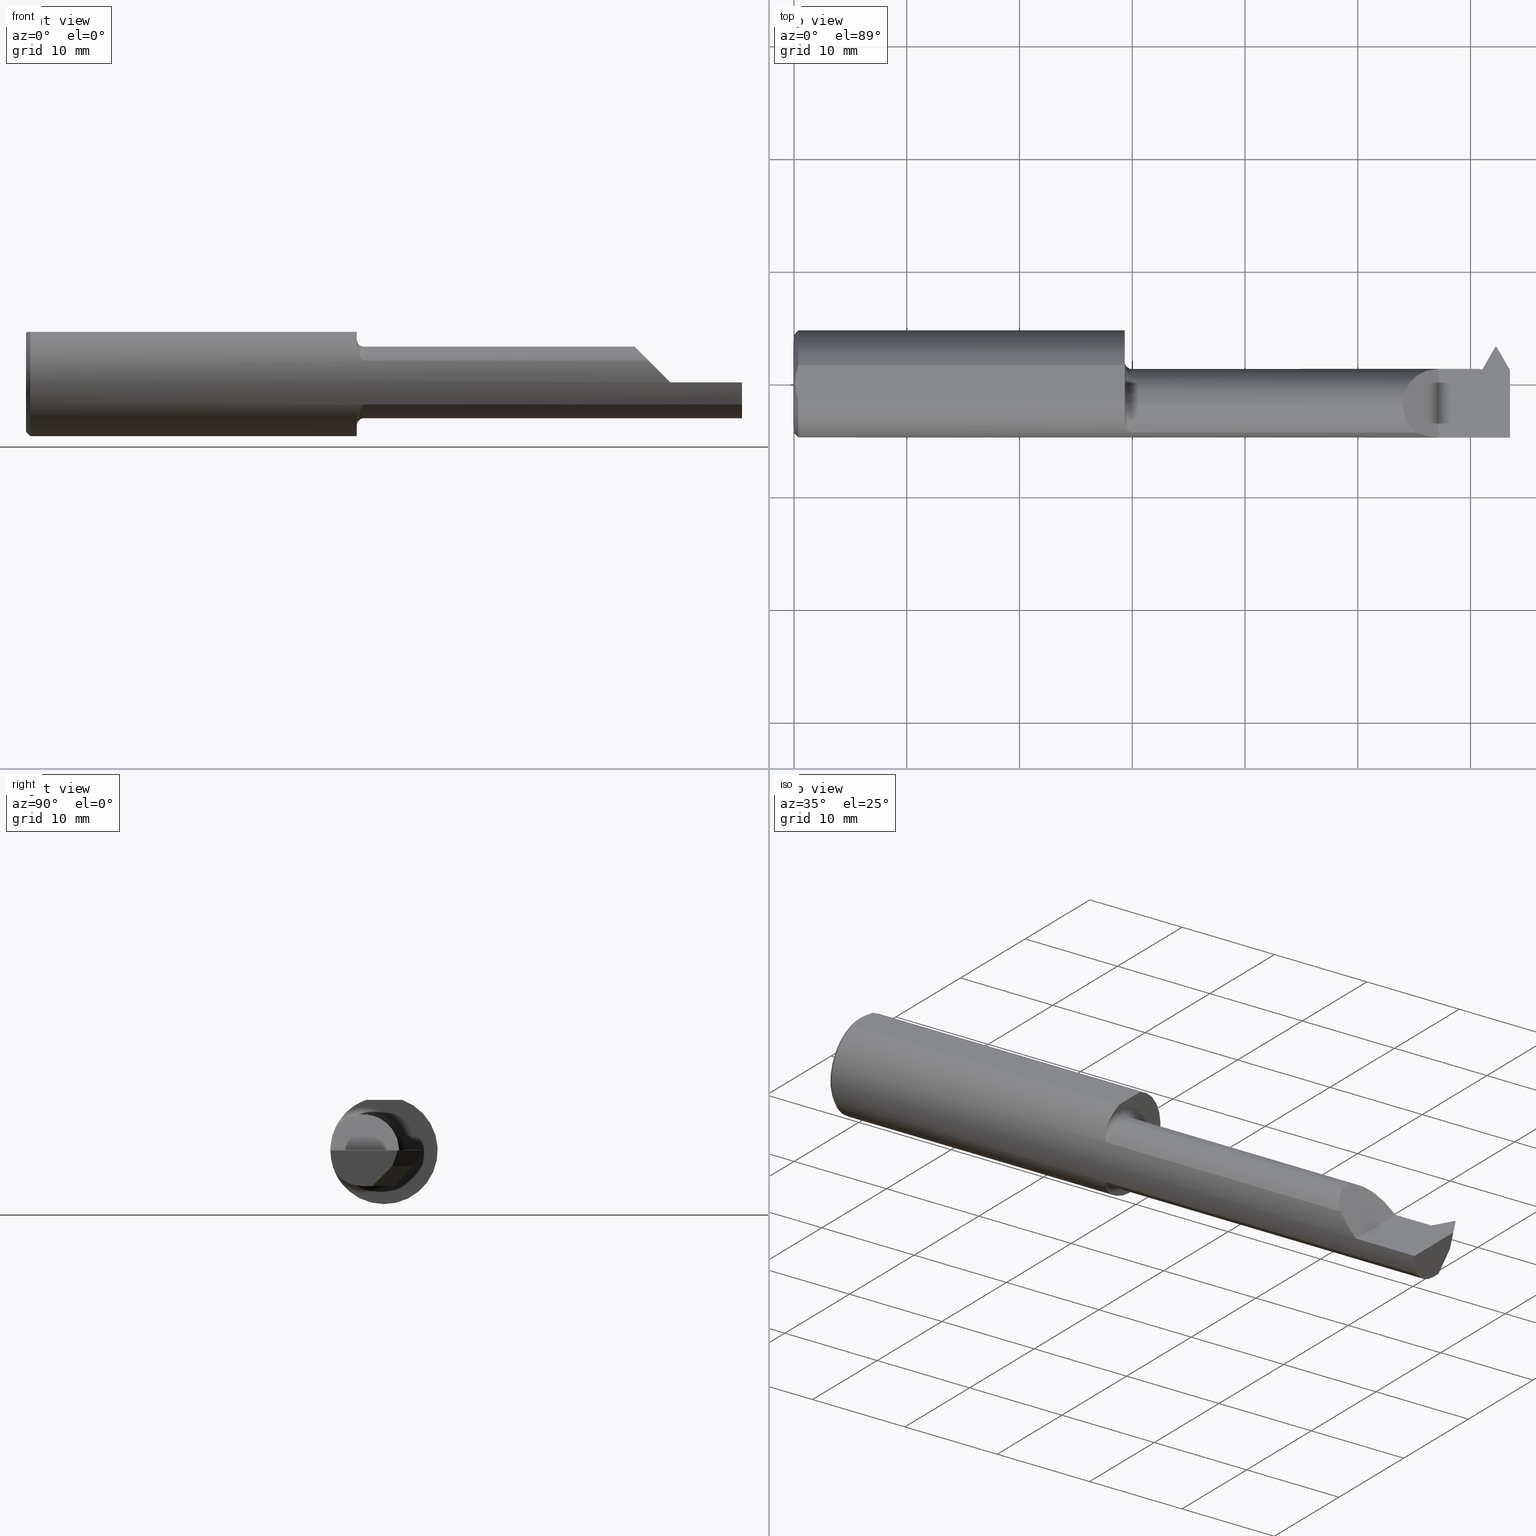
[diagram: canonical four-view strip — front | top / right | iso, engineering-drawing reading convention]
A machine part, canonical four-view strip (front | top / right | iso — engineering-drawing reading convention). The complete STEP part file that produces these views, byte-faithful:
ISO-10303-21;
HEADER;
FILE_DESCRIPTION (( 'STEP AP203' ),
    '1' );
FILE_NAME ('230400-TT3201250.STEP',
    '2025-04-22T22:47:36',
    ( '' ),
    ( '' ),
    'SwSTEP 2.0',
    'SolidWorks 2024',
    '' );
FILE_SCHEMA (( 'CONFIG_CONTROL_DESIGN' ));
ENDSEC;

DATA;
#1 = FACE_OUTER_BOUND ( 'NONE', #359, .T. ) ;
#2 = CARTESIAN_POINT ( 'NONE',  ( 1.155424272813302844, -0.1340287381043765713, 0.1311054684688081062 ) ) ;
#3 = ORIENTED_EDGE ( 'NONE', *, *, #866, .T. ) ;
#4 = CC_DESIGN_SECURITY_CLASSIFICATION ( #476, ( #521 ) ) ;
#5 = DIRECTION ( 'NONE',  ( 0.1751915364254256202, 0.1751915364254256202, 0.9688218882383889952 ) ) ;
#6 = CARTESIAN_POINT ( 'NONE',  ( 2.142479785539520787, -0.1466433954276125384, 0.1078702144604786056 ) ) ;
#7 = CARTESIAN_POINT ( 'NONE',  ( 1.176406265684706742, -0.1703893073657099799, 0.07790344355110682961 ) ) ;
#8 = EDGE_LOOP ( 'NONE', ( #40, #827, #201, #171, #151 ) ) ;
#9 = AXIS2_PLACEMENT_3D ( 'NONE', #458, #843, #834 ) ;
#10 = B_SPLINE_CURVE_WITH_KNOTS ( 'NONE', 3,
 ( #497, #957, #797, #640, #806, #280 ),
 .UNSPECIFIED., .F., .F.,
 ( 4, 2, 4 ),
 ( 0.004260876108247118113, 0.005070351723613903024, 0.005879827338980687934 ),
 .UNSPECIFIED. ) ;
#11 = FACE_OUTER_BOUND ( 'NONE', #216, .T. ) ;
#12 = DIRECTION ( 'NONE',  ( 1.000000000000000000, 0.000000000000000000, 0.000000000000000000 ) ) ;
#13 = CARTESIAN_POINT ( 'NONE',  ( 0.01500000000000079568, 2.294375778202566330E-17, 0.1873499999999999888 ) ) ;
#14 = ORIENTED_EDGE ( 'NONE', *, *, #662, .F. ) ;
#15 = LINE ( 'NONE', #472, #285 ) ;
#16 = EDGE_CURVE ( 'NONE', #564, #267, #25, .T. ) ;
#17 = DIRECTION ( 'NONE',  ( 1.000000000000000000, -0.000000000000000000, -0.000000000000000000 ) ) ;
#18 = ORIENTED_EDGE ( 'NONE', *, *, #579, .T. ) ;
#19 = APPROVAL_DATE_TIME ( #484, #734 ) ;
#20 = DIRECTION ( 'NONE',  ( 0.000000000000000000, 0.000000000000000000, 1.000000000000000000 ) ) ;
#21 = AXIS2_PLACEMENT_3D ( 'NONE', #193, #494, #883 ) ;
#22 = CARTESIAN_POINT ( 'NONE',  ( 2.409054084941633977, -0.01574417682531606411, -0.1114485566650211257 ) ) ;
#23 = PLANE ( 'NONE',  #606 ) ;
#24 = VERTEX_POINT ( 'NONE', #368 ) ;
#25 = CIRCLE ( 'NONE', #352, 0.1873499999999999888 ) ;
#26 = AXIS2_PLACEMENT_3D ( 'NONE', #946, #788, #259 ) ;
#27 = DIRECTION ( 'NONE',  ( 0.4999999999999998335, 0.8660254037844385966, 0.000000000000000000 ) ) ;
#28 = CARTESIAN_POINT ( 'NONE',  ( 1.180000000000000160, -0.07234999999999998377, -0.1499999999999999944 ) ) ;
#29 = CARTESIAN_POINT ( 'NONE',  ( 2.409171226690771661, 0.03945618158170156181, -0.05593300506159747110 ) ) ;
#30 = ORIENTED_EDGE ( 'NONE', *, *, #82, .T. ) ;
#31 = EDGE_CURVE ( 'NONE', #632, #614, #894, .T. ) ;
#32 = CARTESIAN_POINT ( 'NONE',  ( 2.125349999999999184, -0.07234999999999998377, 0.1250000000000000000 ) ) ;
#33 = DIRECTION ( 'NONE',  ( -0.000000000000000000, 0.000000000000000000, -1.000000000000000000 ) ) ;
#34 = ORIENTED_EDGE ( 'NONE', *, *, #502, .F. ) ;
#35 = VERTEX_POINT ( 'NONE', #59 ) ;
#36 = COORDINATED_UNIVERSAL_TIME_OFFSET ( 8, 0, .BEHIND. ) ;
#37 = CARTESIAN_POINT ( 'NONE',  ( 2.500000000000000000, 0.1395529379841212447, -0.1250000000000000278 ) ) ;
#38 = AXIS2_PLACEMENT_3D ( 'NONE', #848, #550, #467 ) ;
#39 = DIRECTION ( 'NONE',  ( -0.7071067811865481278, 0.000000000000000000, -0.7071067811865470176 ) ) ;
#40 = ORIENTED_EDGE ( 'NONE', *, *, #940, .F. ) ;
#41 = ADVANCED_FACE ( 'NONE', ( #978 ), #594, .T. ) ;
#42 = EDGE_CURVE ( 'NONE', #514, #761, #227, .T. ) ;
#43 = LINE ( 'NONE', #337, #149 ) ;
#44 = ORIENTED_EDGE ( 'NONE', *, *, #115, .T. ) ;
#45 = DIRECTION ( 'NONE',  ( 0.000000000000000000, -1.000000000000000000, 0.000000000000000000 ) ) ;
#46 = CC_DESIGN_PERSON_AND_ORGANIZATION_ASSIGNMENT ( #949, #262, ( #521 ) ) ;
#47 = LINE ( 'NONE', #563, #787 ) ;
#48 = ORIENTED_EDGE ( 'NONE', *, *, #625, .T. ) ;
#49 = ORIENTED_EDGE ( 'NONE', *, *, #895, .F. ) ;
#50 = CARTESIAN_POINT ( 'NONE',  ( 2.403311978464830023, 0.05064999999999998670, 0.000000000000000000 ) ) ;
#51 = DIRECTION ( 'NONE',  ( 0.1779435454738421407, 0.000000000000000000, 0.9840406976462907629 ) ) ;
#52 =( BOUNDED_CURVE ( )  B_SPLINE_CURVE ( 3, ( #875, #29, #329, #109 ),
 .UNSPECIFIED., .F., .T. ) 
 B_SPLINE_CURVE_WITH_KNOTS ( ( 4, 4 ),
 ( 4.411180308844337539, 4.459909643144646552 ),
 .UNSPECIFIED. ) 
 CURVE ( )  GEOMETRIC_REPRESENTATION_ITEM ( )  RATIONAL_B_SPLINE_CURVE ( ( 1.000000000000000000, 0.9998021307870518237, 0.9998021307870518237, 1.000000000000000000 ) ) 
 REPRESENTATION_ITEM ( '' )  );
#53 = TOROIDAL_SURFACE ( 'NONE', #38, 0.1499999999999999944, 0.02500000000000000139 ) ;
#54 = CARTESIAN_POINT ( 'NONE',  ( 2.417651630723349321, -0.04248585645573448033, -0.1250000000000000278 ) ) ;
#55 = CIRCLE ( 'NONE', #433, 0.1250000000000000000 ) ;
#56 = AXIS2_PLACEMENT_3D ( 'NONE', #452, #746, #366 ) ;
#57 = ORIENTED_EDGE ( 'NONE', *, *, #859, .T. ) ;
#58 = ADVANCED_FACE ( 'NONE', ( #124 ), #138, .F. ) ;
#59 = CARTESIAN_POINT ( 'NONE',  ( 2.173280599499920918, -0.1707639599170693578, 0.07706940050007844711 ) ) ;
#60 = PLANE ( 'NONE',  #480 ) ;
#61 = ORIENTED_EDGE ( 'NONE', *, *, #717, .T. ) ;
#62 = DIRECTION ( 'NONE',  ( 0.000000000000000000, 0.000000000000000000, -1.000000000000000000 ) ) ;
#63 = CARTESIAN_POINT ( 'NONE',  ( 2.409266663148388332, 0.03871363218546797907, -0.05735894390891729810 ) ) ;
#64 = CARTESIAN_POINT ( 'NONE',  ( 2.409054084941633977, -0.07234999999999998377, 0.000000000000000000 ) ) ;
#65 = ORIENTED_EDGE ( 'NONE', *, *, #128, .F. ) ;
#66 = AXIS2_PLACEMENT_3D ( 'NONE', #127, #112, #962 ) ;
#67 = CARTESIAN_POINT ( 'NONE',  ( 2.504904134078944633, 0.1367215348535005537, -0.1250000000000000278 ) ) ;
#68 = AXIS2_PLACEMENT_3D ( 'NONE', #679, #842, #612 ) ;
#69 = ORIENTED_EDGE ( 'NONE', *, *, #541, .T. ) ;
#70 = AXIS2_PLACEMENT_3D ( 'NONE', #28, #627, #551 ) ;
#71 = DIRECTION ( 'NONE',  ( 1.000000000000000000, -0.000000000000000000, -0.000000000000000000 ) ) ;
#72 = ORIENTED_EDGE ( 'NONE', *, *, #831, .F. ) ;
#73 = B_SPLINE_CURVE_WITH_KNOTS ( 'NONE', 3,
 ( #431, #440, #200, #355, #736, #351 ),
 .UNSPECIFIED., .F., .F.,
 ( 4, 2, 4 ),
 ( 0.005879827338980687934, 0.006688927827499994636, 0.007498028316019300470 ),
 .UNSPECIFIED. ) ;
#74 = CARTESIAN_POINT ( 'NONE',  ( 0.01500000000000079568, 0.000000000000000000, 0.000000000000000000 ) ) ;
#75 = CARTESIAN_POINT ( 'NONE',  ( 2.173280599499920918, -0.1707639599170693578, 0.07706940050007844711 ) ) ;
#76 = CARTESIAN_POINT ( 'NONE',  ( 1.158207941101452310, -0.1482224317505124178, 0.1148057762150967998 ) ) ;
#77 = VERTEX_POINT ( 'NONE', #575 ) ;
#78 = DIRECTION ( 'NONE',  ( 1.000000000000000000, 0.000000000000000000, 0.000000000000000000 ) ) ;
#79 = DIRECTION ( 'NONE',  ( 0.7745966692414811838, 0.4472135954999584828, -0.4472135954999613694 ) ) ;
#80 = CARTESIAN_POINT ( 'NONE',  ( 1.155000000000000027, -0.07234999999999998377, 0.000000000000000000 ) ) ;
#81 = ORIENTED_EDGE ( 'NONE', *, *, #877, .T. ) ;
#82 = EDGE_CURVE ( 'NONE', #77, #807, #884, .T. ) ;
#83 = CONICAL_SURFACE ( 'NONE', #633, 0.1873499999999999888, 0.7853981633974437271 ) ;
#84 = LINE ( 'NONE', #382, #569 ) ;
#85 = DIRECTION ( 'NONE',  ( -1.000000000000000000, -0.000000000000000000, -0.000000000000000000 ) ) ;
#86 = DIRECTION ( 'NONE',  ( -1.000000000000000000, -0.000000000000000000, -0.000000000000000000 ) ) ;
#87 = ORIENTED_EDGE ( 'NONE', *, *, #905, .F. ) ;
#88 = EDGE_CURVE ( 'NONE', #707, #35, #90, .T. ) ;
#89 = LINE ( 'NONE', #779, #194 ) ;
#90 =( BOUNDED_CURVE ( )  B_SPLINE_CURVE ( 3, ( #394, #616, #607, #307 ),
 .UNSPECIFIED., .F., .T. ) 
 B_SPLINE_CURVE_WITH_KNOTS ( ( 4, 4 ),
 ( 4.714257142666966161, 5.136341099405672850 ),
 .UNSPECIFIED. ) 
 CURVE ( )  GEOMETRIC_REPRESENTATION_ITEM ( )  RATIONAL_B_SPLINE_CURVE ( ( 1.000000000000000000, 0.9852087820824323439, 0.9852087820824323439, 1.000000000000000000 ) ) 
 REPRESENTATION_ITEM ( '' )  );
#91 = CARTESIAN_POINT ( 'NONE',  ( 2.408768555666735978, 0.04119893105087686636, -0.05226509597430411408 ) ) ;
#92 = CARTESIAN_POINT ( 'NONE',  ( 1.178119196786478584, -0.1707639599170698019, 0.07706940050007766996 ) ) ;
#93 = VERTEX_POINT ( 'NONE', #129 ) ;
#94 = CARTESIAN_POINT ( 'NONE',  ( 2.250000000000000000, 0.2999999999999999889, -6.429183357567480113E-17 ) ) ;
#95 = CARTESIAN_POINT ( 'NONE',  ( 2.125349999999999628, -0.1114715001235029451, 0.1250000000000000278 ) ) ;
#96 = DIRECTION ( 'NONE',  ( -1.000000000000000000, -0.000000000000000000, -0.000000000000000000 ) ) ;
#97 = ORIENTED_EDGE ( 'NONE', *, *, #275, .T. ) ;
#98 = DATE_AND_TIME ( #869, #678 ) ;
#99 = CARTESIAN_POINT ( 'NONE',  ( 2.125349999999999184, 0.0007108448279458398980, 0.1250000000000000278 ) ) ;
#100 = AXIS2_PLACEMENT_3D ( 'NONE', #221, #456, #62 ) ;
#101 = EDGE_CURVE ( 'NONE', #24, #632, #922, .T. ) ;
#102 = DIRECTION ( 'NONE',  ( 0.000000000000000000, 0.000000000000000000, 1.000000000000000000 ) ) ;
#103 = EDGE_CURVE ( 'NONE', #543, #675, #320, .T. ) ;
#104 = LINE ( 'NONE', #792, #651 ) ;
#105 = VERTEX_POINT ( 'NONE', #384 ) ;
#106 = VECTOR ( 'NONE', #981, 39.37007874015748854 ) ;
#107 = AXIS2_PLACEMENT_3D ( 'NONE', #418, #342, #490 ) ;
#108 = CARTESIAN_POINT ( 'NONE',  ( 2.409054084941633977, 0.04070437983970536661, -0.05500000000000006967 ) ) ;
#109 = CARTESIAN_POINT ( 'NONE',  ( 2.408768555666735978, 0.04119893105087686636, -0.05226509597430411408 ) ) ;
#110 = EDGE_LOOP ( 'NONE', ( #190, #688, #955, #818, #844, #789, #247, #114, #487 ) ) ;
#111 = APPROVAL_DATE_TIME ( #943, #539 ) ;
#112 = DIRECTION ( 'NONE',  ( 1.000000000000000000, 0.000000000000000000, 0.000000000000000000 ) ) ;
#113 = CARTESIAN_POINT ( 'NONE',  ( 2.403311978464830023, 0.05064999999999998670, 0.000000000000000000 ) ) ;
#114 = ORIENTED_EDGE ( 'NONE', *, *, #812, .F. ) ;
#115 = EDGE_CURVE ( 'NONE', #346, #256, #695, .T. ) ;
#116 = PERSON_AND_ORGANIZATION ( #339, #730 ) ;
#117 = CIRCLE ( 'NONE', #243, 0.1723499999999993371 ) ;
#118 = APPLICATION_CONTEXT ( 'configuration controlled 3d designs of mechanical parts and assemblies' ) ;
#119 = CARTESIAN_POINT ( 'NONE',  ( 1.155000000000000027, -0.1232518659295093050, 0.1410992560040422727 ) ) ;
#120 = VERTEX_POINT ( 'NONE', #169 ) ;
#121 =( CONVERSION_BASED_UNIT ( 'INCH', #950 ) LENGTH_UNIT ( ) NAMED_UNIT ( #776 ) );
#122 = DIRECTION ( 'NONE',  ( 0.5000000000000001110, 0.8660254037844384856, 0.000000000000000000 ) ) ;
#123 = EDGE_LOOP ( 'NONE', ( #671, #873 ) ) ;
#124 = FACE_OUTER_BOUND ( 'NONE', #916, .T. ) ;
#125 = LINE ( 'NONE', #817, #545 ) ;
#126 = EDGE_LOOP ( 'NONE', ( #814, #516, #338, #65, #644, #81, #536, #961, #391, #851, #793, #156, #567 ) ) ;
#127 = CARTESIAN_POINT ( 'NONE',  ( 2.409054084941633977, 0.1283568358907640483, -0.05500000000000006967 ) ) ;
#128 = EDGE_CURVE ( 'NONE', #145, #745, #769, .T. ) ;
#129 = CARTESIAN_POINT ( 'NONE',  ( 2.449446622366127979, 0.1160911906293533996, -0.03999999999999998002 ) ) ;
#130 = EDGE_CURVE ( 'NONE', #698, #745, #620, .T. ) ;
#131 = DIRECTION ( 'NONE',  ( 0.000000000000000000, 0.000000000000000000, -1.000000000000000000 ) ) ;
#132 = VERTEX_POINT ( 'NONE', #22 ) ;
#133 = VECTOR ( 'NONE', #454, 39.37007874015748143 ) ;
#134 = ORIENTED_EDGE ( 'NONE', *, *, #519, .F. ) ;
#135 = FACE_OUTER_BOUND ( 'NONE', #110, .T. ) ;
#136 = ORIENTED_EDGE ( 'NONE', *, *, #236, .F. ) ;
#137 = DIRECTION ( 'NONE',  ( -1.648285525897217286E-15, -0.7071067811865513475, -0.7071067811865436870 ) ) ;
#138 = PLANE ( 'NONE',  #786 ) ;
#139 = CARTESIAN_POINT ( 'NONE',  ( 2.500000000000000000, -0.1707639599170698019, -0.07706940050007768384 ) ) ;
#140 = VERTEX_POINT ( 'NONE', #91 ) ;
#141 = EDGE_CURVE ( 'NONE', #524, #899, #164, .T. ) ;
#142 = CARTESIAN_POINT ( 'NONE',  ( 1.173606395404012348, -0.1693970531853373485, -0.08003777040702697576 ) ) ;
#143 = CARTESIAN_POINT ( 'NONE',  ( 1.155000000000000027, 0.000000000000000000, 0.000000000000000000 ) ) ;
#144 = DIRECTION ( 'NONE',  ( 0.7071067811865507924, 0.000000000000000000, -0.7071067811865443531 ) ) ;
#145 = VERTEX_POINT ( 'NONE', #622 ) ;
#146 = CARTESIAN_POINT ( 'NONE',  ( 2.395000000000000018, 0.05064999999999998670, 0.000000000000000000 ) ) ;
#147 = VECTOR ( 'NONE', #350, 39.37007874015748854 ) ;
#148 = CARTESIAN_POINT ( 'NONE',  ( 2.500000000000000000, 0.000000000000000000, 0.000000000000000000 ) ) ;
#149 = VECTOR ( 'NONE', #703, 39.37007874015748143 ) ;
#150 = CARTESIAN_POINT ( 'NONE',  ( 2.403311978464830023, 0.05064999999999998670, 0.000000000000000000 ) ) ;
#151 = ORIENTED_EDGE ( 'NONE', *, *, #332, .F. ) ;
#152 = CARTESIAN_POINT ( 'NONE',  ( 1.155000000000000027, 0.000000000000000000, 0.000000000000000000 ) ) ;
#153 = CARTESIAN_POINT ( 'NONE',  ( 1.777500000000000080, -0.1707639599170698019, -0.07706940050007766996 ) ) ;
#154 = ADVANCED_FACE ( 'NONE', ( #522 ), #686, .F. ) ;
#155 = CARTESIAN_POINT ( 'NONE',  ( 1.172402770576354447, -0.1687580686002390362, 0.08138221229323124029 ) ) ;
#156 = ORIENTED_EDGE ( 'NONE', *, *, #347, .T. ) ;
#157 = CARTESIAN_POINT ( 'NONE',  ( 2.518819254367519633, -0.7177720014826116657, -1.003595231669350607 ) ) ;
#158 = CARTESIAN_POINT ( 'NONE',  ( 0.000000000000000000, 0.000000000000000000, 0.000000000000000000 ) ) ;
#159 = EDGE_CURVE ( 'NONE', #805, #632, #237, .T. ) ;
#160 = ADVANCED_FACE ( 'NONE', ( #240 ), #764, .T. ) ;
#161 = DIRECTION ( 'NONE',  ( -1.000000000000000000, -0.000000000000000000, -0.000000000000000000 ) ) ;
#162 = ORIENTED_EDGE ( 'NONE', *, *, #130, .F. ) ;
#163 = AXIS2_PLACEMENT_3D ( 'NONE', #319, #926, #853 ) ;
#164 = LINE ( 'NONE', #927, #167 ) ;
#165 = CARTESIAN_POINT ( 'NONE',  ( 2.500000000000000000, -0.07234999999999998377, 0.000000000000000000 ) ) ;
#166 = ORIENTED_EDGE ( 'NONE', *, *, #430, .F. ) ;
#167 = VECTOR ( 'NONE', #230, 39.37007874015748143 ) ;
#168 = CARTESIAN_POINT ( 'NONE',  ( 1.155000000000000027, -0.07234999999999998377, 0.000000000000000000 ) ) ;
#169 = CARTESIAN_POINT ( 'NONE',  ( 2.418197582037931337, -0.07235000000000001152, -0.1250000000000000000 ) ) ;
#170 = CARTESIAN_POINT ( 'NONE',  ( 2.409054084941633977, 0.04070437983970536661, -0.05500000000000006967 ) ) ;
#171 = ORIENTED_EDGE ( 'NONE', *, *, #373, .F. ) ;
#172 = COORDINATED_UNIVERSAL_TIME_OFFSET ( 8, 0, .BEHIND. ) ;
#173 = PLANE ( 'NONE',  #660 ) ;
#174 = DIRECTION ( 'NONE',  ( 1.000000000000000000, 0.000000000000000000, 0.000000000000000000 ) ) ;
#175 = CARTESIAN_POINT ( 'NONE',  ( 1.155000000000000027, 0.05265000000000001623, -6.429183357567480113E-17 ) ) ;
#176 = VERTEX_POINT ( 'NONE', #774 ) ;
#177 = DIRECTION ( 'NONE',  ( 0.000000000000000000, 0.000000000000000000, 1.000000000000000000 ) ) ;
#178 = VECTOR ( 'NONE', #526, 39.37007874015748143 ) ;
#179 = CARTESIAN_POINT ( 'NONE',  ( 1.155000000000000027, -0.06325108694718215019, 0.1763499999999999790 ) ) ;
#180 = ORIENTED_EDGE ( 'NONE', *, *, #741, .F. ) ;
#181 = TOROIDAL_SURFACE ( 'NONE', #26, 0.1499999999999999944, 0.02500000000000000139 ) ;
#182 = DATE_AND_TIME ( #693, #599 ) ;
#183 = DIRECTION ( 'NONE',  ( 0.000000000000000000, -1.000000000000000000, 0.000000000000000000 ) ) ;
#184 = CARTESIAN_POINT ( 'NONE',  ( 1.155000000000000027, 0.04119893105087687329, -0.05226509597430406551 ) ) ;
#185 = ORIENTED_EDGE ( 'NONE', *, *, #931, .T. ) ;
#186 = EDGE_CURVE ( 'NONE', #145, #35, #934, .T. ) ;
#187 =( NAMED_UNIT ( * ) SI_UNIT ( $, .STERADIAN. ) SOLID_ANGLE_UNIT ( ) );
#188 = UNCERTAINTY_MEASURE_WITH_UNIT (LENGTH_MEASURE( 1.000000000000000082E-05 ), #121, 'distance_accuracy_value', 'NONE');
#189 = LINE ( 'NONE', #836, #701 ) ;
#190 = ORIENTED_EDGE ( 'NONE', *, *, #159, .T. ) ;
#191 =( BOUNDED_CURVE ( )  B_SPLINE_CURVE ( 3, ( #719, #706, #407, #804 ),
 .UNSPECIFIED., .F., .F. ) 
 B_SPLINE_CURVE_WITH_KNOTS ( ( 4, 4 ),
 ( 1.139420741225435352, 1.570796326794896780 ),
 .UNSPECIFIED. ) 
 CURVE ( )  GEOMETRIC_REPRESENTATION_ITEM ( )  RATIONAL_B_SPLINE_CURVE ( ( 1.000000000000000000, 0.9845529495419454991, 0.9845529495419454991, 1.000000000000000000 ) ) 
 REPRESENTATION_ITEM ( '' )  );
#192 = ADVANCED_FACE ( 'NONE', ( #299 ), #825, .T. ) ;
#193 = CARTESIAN_POINT ( 'NONE',  ( 0.000000000000000000, 0.000000000000000000, 0.000000000000000000 ) ) ;
#194 = VECTOR ( 'NONE', #244, 39.37007874015748143 ) ;
#195 = DIRECTION ( 'NONE',  ( 1.000000000000000000, 0.000000000000000000, 0.000000000000000000 ) ) ;
#196 = VERTEX_POINT ( 'NONE', #673 ) ;
#197 = AXIS2_PLACEMENT_3D ( 'NONE', #64, #364, #748 ) ;
#198 = AXIS2_PLACEMENT_3D ( 'NONE', #711, #33, #861 ) ;
#199 = ORIENTED_EDGE ( 'NONE', *, *, #772, .F. ) ;
#200 = CARTESIAN_POINT ( 'NONE',  ( 0.004991821518933527678, -0.02143118227845419027, 0.1763500000000000068 ) ) ;
#201 = ORIENTED_EDGE ( 'NONE', *, *, #979, .F. ) ;
#202 = MECHANICAL_CONTEXT ( 'NONE', #118, 'mechanical' ) ;
#203 = ADVANCED_FACE ( 'NONE', ( #1 ), #600, .T. ) ;
#204 = CARTESIAN_POINT ( 'NONE',  ( 2.399999999999999911, 0.03109119062935247757, -0.1249999999999999861 ) ) ;
#205 = LINE ( 'NONE', #975, #647 ) ;
#206 = VERTEX_POINT ( 'NONE', #453 ) ;
#207 = PERSON_AND_ORGANIZATION_ROLE ( 'design_owner' ) ;
#208 = PRODUCT_RELATED_PRODUCT_CATEGORY ( 'detail', '', ( #930 ) ) ;
#209 = ORIENTED_EDGE ( 'NONE', *, *, #676, .F. ) ;
#210 = AXIS2_PLACEMENT_3D ( 'NONE', #293, #282, #752 ) ;
#211 = DIRECTION ( 'NONE',  ( -1.000000000000000000, 9.629051156024643871E-15, 9.629051156024541319E-15 ) ) ;
#212 = ORIENTED_EDGE ( 'NONE', *, *, #403, .T. ) ;
#213 = CARTESIAN_POINT ( 'NONE',  ( 1.180000000000000160, -0.07234999999999996989, -0.1250000000000000000 ) ) ;
#214 = ADVANCED_FACE ( 'NONE', ( #837 ), #757, .F. ) ;
#215 = DIRECTION ( 'NONE',  ( -1.000000000000000000, -0.000000000000000000, -0.000000000000000000 ) ) ;
#216 = EDGE_LOOP ( 'NONE', ( #740, #162, #969, #947 ) ) ;
#217 = CARTESIAN_POINT ( 'NONE',  ( 2.500000000000000000, -0.07234999999999999765, -0.1249999999999999861 ) ) ;
#218 = VERTEX_POINT ( 'NONE', #781 ) ;
#219 = LINE ( 'NONE', #665, #558 ) ;
#220 = EDGE_LOOP ( 'NONE', ( #441, #577, #436, #475, #721, #365 ) ) ;
#221 = CARTESIAN_POINT ( 'NONE',  ( 1.180000000000000160, -0.07234999999999998377, 0.000000000000000000 ) ) ;
#222 = CARTESIAN_POINT ( 'NONE',  ( 2.409054084941633977, 0.03909855666502076027, -0.05660582317468466906 ) ) ;
#223 = CARTESIAN_POINT ( 'NONE',  ( 2.409054084941633977, -0.01574417682531606411, -0.1114485566650211257 ) ) ;
#224 = VERTEX_POINT ( 'NONE', #702 ) ;
#225 = CIRCLE ( 'NONE', #417, 0.1250000000000000000 ) ;
#226 = CARTESIAN_POINT ( 'NONE',  ( 2.403311978464830023, 0.05064999999999998670, 0.000000000000000000 ) ) ;
#227 =( BOUNDED_CURVE ( )  B_SPLINE_CURVE ( 3, ( #743, #63, #585, #222 ),
 .UNSPECIFIED., .F., .T. ) 
 B_SPLINE_CURVE_WITH_KNOTS ( ( 4, 4 ),
 ( 3.446885897117472730, 3.457035344740369442 ),
 .UNSPECIFIED. ) 
 CURVE ( )  GEOMETRIC_REPRESENTATION_ITEM ( )  RATIONAL_B_SPLINE_CURVE ( ( 1.000000000000000000, 0.9999914157445015661, 0.9999914157445015661, 1.000000000000000000 ) ) 
 REPRESENTATION_ITEM ( '' )  );
#228 = EDGE_CURVE ( 'NONE', #445, #707, #621, .T. ) ;
#229 = CIRCLE ( 'NONE', #276, 0.1499999999999999944 ) ;
#230 = DIRECTION ( 'NONE',  ( -1.000000000000000000, -0.000000000000000000, -0.000000000000000000 ) ) ;
#231 = CIRCLE ( 'NONE', #107, 0.02500000000000000486 ) ;
#232 = DIRECTION ( 'NONE',  ( -1.000000000000000000, -0.000000000000000000, -0.000000000000000000 ) ) ;
#233 = ORIENTED_EDGE ( 'NONE', *, *, #772, .T. ) ;
#234 = PLANE ( 'NONE',  #56 ) ;
#235 = EDGE_CURVE ( 'NONE', #698, #725, #811, .T. ) ;
#236 = EDGE_CURVE ( 'NONE', #256, #698, #828, .T. ) ;
#237 = LINE ( 'NONE', #528, #718 ) ;
#238 = FACE_OUTER_BOUND ( 'NONE', #370, .T. ) ;
#239 = VERTEX_POINT ( 'NONE', #581 ) ;
#240 = FACE_OUTER_BOUND ( 'NONE', #624, .T. ) ;
#241 = CARTESIAN_POINT ( 'NONE',  ( 2.414352373134415419, 0.1379871996461446981, -0.1250000000000000278 ) ) ;
#242 = ORIENTED_EDGE ( 'NONE', *, *, #478, .T. ) ;
#243 = AXIS2_PLACEMENT_3D ( 'NONE', #791, #710, #561 ) ;
#244 = DIRECTION ( 'NONE',  ( -0.1021978390768668865, 0.1770118497048815409, 0.9788883525469466163 ) ) ;
#245 = CARTESIAN_POINT ( 'NONE',  ( 1.155000000000000027, -0.07234999999999998377, 0.1250000000000000000 ) ) ;
#246 = LINE ( 'NONE', #547, #527 ) ;
#247 = ORIENTED_EDGE ( 'NONE', *, *, #573, .F. ) ;
#248 = EDGE_CURVE ( 'NONE', #253, #899, #73, .T. ) ;
#249 = CONICAL_SURFACE ( 'NONE', #367, 0.1873499999999999888, 0.7853981633974437271 ) ;
#250 = DIRECTION ( 'NONE',  ( 1.000000000000000000, 0.000000000000000000, 0.000000000000000000 ) ) ;
#251 = DIRECTION ( 'NONE',  ( 0.000000000000000000, 0.000000000000000000, -1.000000000000000000 ) ) ;
#252 = CARTESIAN_POINT ( 'NONE',  ( 2.409370448767462314, 0.03851830851078916901, -0.05773402954892806194 ) ) ;
#253 = VERTEX_POINT ( 'NONE', #499 ) ;
#254 = DATE_TIME_ROLE ( 'classification_date' ) ;
#255 = DIRECTION ( 'NONE',  ( -0.000000000000000000, 1.000000000000000000, -0.000000000000000000 ) ) ;
#256 = VERTEX_POINT ( 'NONE', #744 ) ;
#257 = PERSON_AND_ORGANIZATION_ROLE ( 'design_supplier' ) ;
#258 = PLANE ( 'NONE',  #163 ) ;
#259 = DIRECTION ( 'NONE',  ( 0.000000000000000000, 0.000000000000000000, -1.000000000000000000 ) ) ;
#260 = EDGE_LOOP ( 'NONE', ( #784, #886, #766, #548 ) ) ;
#261 = AXIS2_PLACEMENT_3D ( 'NONE', #150, #765, #760 ) ;
#262 = PERSON_AND_ORGANIZATION_ROLE ( 'creator' ) ;
#263 = DIRECTION ( 'NONE',  ( 0.000000000000000000, -1.000000000000000000, 2.417245856451656257E-16 ) ) ;
#264 = ADVANCED_FACE ( 'NONE', ( #655 ), #963, .F. ) ;
#265 = LINE ( 'NONE', #628, #404 ) ;
#266 = ORIENTED_EDGE ( 'NONE', *, *, #727, .T. ) ;
#267 = VERTEX_POINT ( 'NONE', #286 ) ;
#268 = SECURITY_CLASSIFICATION_LEVEL ( 'unclassified' ) ;
#269 = DESIGN_CONTEXT ( 'detailed design', #796, 'design' ) ;
#270 = PLANE ( 'NONE',  #277 ) ;
#271 = VERTEX_POINT ( 'NONE', #369 ) ;
#272 = PLANE ( 'NONE',  #363 ) ;
#273 = APPROVAL_PERSON_ORGANIZATION ( #501, #539, #954 ) ;
#274 = ORIENTED_EDGE ( 'NONE', *, *, #409, .T. ) ;
#275 = EDGE_CURVE ( 'NONE', #805, #445, #896, .T. ) ;
#276 = AXIS2_PLACEMENT_3D ( 'NONE', #316, #232, #530 ) ;
#277 = AXIS2_PLACEMENT_3D ( 'NONE', #566, #39, #928 ) ;
#278 = CARTESIAN_POINT ( 'NONE',  ( 2.250000000000000000, 0.2999999999999999889, -6.429183357567480113E-17 ) ) ;
#279 = VERTEX_POINT ( 'NONE', #658 ) ;
#280 = CARTESIAN_POINT ( 'NONE',  ( 0.003999999999998503017, 1.478949923165211460E-16, 0.1763499999999999790 ) ) ;
#281 = ORIENTED_EDGE ( 'NONE', *, *, #479, .T. ) ;
#282 = DIRECTION ( 'NONE',  ( -1.000000000000000000, -0.000000000000000000, -0.000000000000000000 ) ) ;
#283 = ADVANCED_FACE ( 'NONE', ( #504 ), #889, .T. ) ;
#284 = CARTESIAN_POINT ( 'NONE',  ( 1.155000000000000027, -0.07234999999999998377, 0.000000000000000000 ) ) ;
#285 = VECTOR ( 'NONE', #399, 39.37007874015748143 ) ;
#286 = CARTESIAN_POINT ( 'NONE',  ( 1.155000000000000027, 0.06325108694718213631, 0.1763499999999999790 ) ) ;
#287 = EDGE_LOOP ( 'NONE', ( #87, #936, #948, #482, #839 ) ) ;
#288 = CARTESIAN_POINT ( 'NONE',  ( 2.500000000000000000, -0.07234999999999999765, -0.1249999999999999861 ) ) ;
#289 = AXIS2_PLACEMENT_3D ( 'NONE', #325, #400, #102 ) ;
#290 = CC_DESIGN_DATE_AND_TIME_ASSIGNMENT ( #932, #254, ( #476 ) ) ;
#291 = DIRECTION ( 'NONE',  ( -1.000000000000000000, 0.000000000000000000, 0.000000000000000000 ) ) ;
#292 = ORIENTED_EDGE ( 'NONE', *, *, #611, .T. ) ;
#293 = CARTESIAN_POINT ( 'NONE',  ( 1.155000000000000027, -0.07234999999999998377, 0.000000000000000000 ) ) ;
#294 = CARTESIAN_POINT ( 'NONE',  ( 2.500000000000000000, 0.04278184266129586577, -0.01547243479515399492 ) ) ;
#295 = CARTESIAN_POINT ( 'NONE',  ( 0.01500000000000079568, 0.000000000000000000, 0.000000000000000000 ) ) ;
#296 = ORIENTED_EDGE ( 'NONE', *, *, #461, .T. ) ;
#297 = EDGE_CURVE ( 'NONE', #761, #132, #219, .T. ) ;
#298 = CARTESIAN_POINT ( 'NONE',  ( 2.399999999999999911, 0.1306500000000008765, -0.02544119062935264533 ) ) ;
#299 = FACE_OUTER_BOUND ( 'NONE', #637, .T. ) ;
#300 = LINE ( 'NONE', #903, #879 ) ;
#301 = ORIENTED_EDGE ( 'NONE', *, *, #332, .T. ) ;
#302 = APPROVAL_PERSON_ORGANIZATION ( #398, #801, #333 ) ;
#303 = EDGE_CURVE ( 'NONE', #279, #93, #125, .T. ) ;
#304 = EDGE_CURVE ( 'NONE', #614, #327, #960, .T. ) ;
#305 = CARTESIAN_POINT ( 'NONE',  ( 2.442591915616446840, 0.1431202488164522724, -0.01297094181290136747 ) ) ;
#306 = CIRCLE ( 'NONE', #321, 0.1873499999999999888 ) ;
#307 = CARTESIAN_POINT ( 'NONE',  ( 2.173280599499920918, -0.1707639599170693578, 0.07706940050007844711 ) ) ;
#308 = CARTESIAN_POINT ( 'NONE',  ( 0.000000000000000000, 0.000000000000000000, 0.000000000000000000 ) ) ;
#309 = ORIENTED_EDGE ( 'NONE', *, *, #479, .F. ) ;
#310 = FACE_OUTER_BOUND ( 'NONE', #260, .T. ) ;
#311 = CARTESIAN_POINT ( 'NONE',  ( 2.395000000000000018, 0.05064999999999998670, 0.000000000000000000 ) ) ;
#312 = DIRECTION ( 'NONE',  ( 0.000000000000000000, 0.000000000000000000, -1.000000000000000000 ) ) ;
#313 = ORIENTED_EDGE ( 'NONE', *, *, #31, .T. ) ;
#314 = CARTESIAN_POINT ( 'NONE',  ( 2.250000000000000000, 0.2999999999999999889, -6.429183357567480113E-17 ) ) ;
#315 = EDGE_CURVE ( 'NONE', #120, #964, #529, .T. ) ;
#316 = CARTESIAN_POINT ( 'NONE',  ( 1.155000000000000027, -0.07234999999999998377, 0.000000000000000000 ) ) ;
#317 = ORIENTED_EDGE ( 'NONE', *, *, #895, .T. ) ;
#318 =( GEOMETRIC_REPRESENTATION_CONTEXT ( 3 ) GLOBAL_UNCERTAINTY_ASSIGNED_CONTEXT ( ( #188 ) ) GLOBAL_UNIT_ASSIGNED_CONTEXT ( ( #121, #944, #187 ) ) REPRESENTATION_CONTEXT ( 'NONE', 'WORKASPACE' ) );
#319 = CARTESIAN_POINT ( 'NONE',  ( 2.409054084941633977, 0.04070437983970536661, -0.05500000000000006967 ) ) ;
#320 = LINE ( 'NONE', #311, #911 ) ;
#321 = AXIS2_PLACEMENT_3D ( 'NONE', #295, #595, #691 ) ;
#322 = EDGE_LOOP ( 'NONE', ( #209, #777, #408 ) ) ;
#323 = VECTOR ( 'NONE', #855, 39.37007874015748143 ) ;
#324 = CARTESIAN_POINT ( 'NONE',  ( 2.500000000000000000, -0.1873499999999998222, -6.429183357567480113E-17 ) ) ;
#325 = CARTESIAN_POINT ( 'NONE',  ( 2.250000000000000000, 0.000000000000000000, 0.000000000000000000 ) ) ;
#326 = FACE_OUTER_BOUND ( 'NONE', #835, .T. ) ;
#327 = VERTEX_POINT ( 'NONE', #517 ) ;
#328 = DIRECTION ( 'NONE',  ( 0.000000000000000000, 0.000000000000000000, -1.000000000000000000 ) ) ;
#329 = CARTESIAN_POINT ( 'NONE',  ( 2.408970555950634918, 0.04034989926761259338, -0.05410966642080770189 ) ) ;
#330 = VERTEX_POINT ( 'NONE', #648 ) ;
#331 = MANIFOLD_SOLID_BREP ( 'Cut-Sweep1', #383 ) ;
#332 = EDGE_CURVE ( 'NONE', #434, #402, #586, .T. ) ;
#333 = APPROVAL_ROLE ( '' ) ;
#334 = LINE ( 'NONE', #722, #645 ) ;
#335 = ADVANCED_FACE ( 'NONE', ( #135 ), #60, .F. ) ;
#336 = AXIS2_PLACEMENT_3D ( 'NONE', #168, #685, #20 ) ;
#337 = CARTESIAN_POINT ( 'NONE',  ( 2.518819254367519633, -0.7177720014826116657, -1.003595231669350607 ) ) ;
#338 = ORIENTED_EDGE ( 'NONE', *, *, #130, .T. ) ;
#339 = PERSON ( 'UNSPECIFIED', 'UNSPECIFIED', 'UNSPECIFIED', ('UNSPECIFIED'), ('UNSPECIFIED'), ('UNSPECIFIED') ) ;
#340 = APPROVAL_DATE_TIME ( #98, #801 ) ;
#341 = CC_DESIGN_PERSON_AND_ORGANIZATION_ASSIGNMENT ( #938, #715, ( #476 ) ) ;
#342 = DIRECTION ( 'NONE',  ( 0.000000000000000000, 1.000000000000000000, -1.224646799147353207E-16 ) ) ;
#343 = ORIENTED_EDGE ( 'NONE', *, *, #980, .F. ) ;
#344 = APPLICATION_PROTOCOL_DEFINITION ( 'international standard', 'config_control_design', 1994, #796 ) ;
#345 = CARTESIAN_POINT ( 'NONE',  ( 2.250000000000000000, -0.1873496730715054903, 0.0003499999999991848933 ) ) ;
#346 = VERTEX_POINT ( 'NONE', #139 ) ;
#347 = EDGE_CURVE ( 'NONE', #761, #132, #636, .T. ) ;
#348 = ORIENTED_EDGE ( 'NONE', *, *, #357, .F. ) ;
#349 = LOCAL_TIME ( 15, 47, 36.00000000000000000, #172 ) ;
#350 = DIRECTION ( 'NONE',  ( 0.000000000000000000, -0.3401001459858867815, -0.9403892229818345827 ) ) ;
#351 = CARTESIAN_POINT ( 'NONE',  ( 0.01500000000000079048, -0.06325108694718213631, 0.1763499999999999790 ) ) ;
#352 = AXIS2_PLACEMENT_3D ( 'NONE', #143, #738, #429 ) ;
#353 = COORDINATED_UNIVERSAL_TIME_OFFSET ( 8, 0, .BEHIND. ) ;
#354 = VECTOR ( 'NONE', #819, 39.37007874015748854 ) ;
#355 = CARTESIAN_POINT ( 'NONE',  ( 0.008774081248144433368, -0.04260406931483737974, 0.1763499999999999790 ) ) ;
#356 = ORIENTED_EDGE ( 'NONE', *, *, #741, .T. ) ;
#357 = EDGE_CURVE ( 'NONE', #327, #807, #205, .T. ) ;
#358 = CARTESIAN_POINT ( 'NONE',  ( 2.500000000000000000, 0.000000000000000000, 0.000000000000000000 ) ) ;
#359 = EDGE_LOOP ( 'NONE', ( #929, #185, #982, #423 ) ) ;
#360 = CC_DESIGN_PERSON_AND_ORGANIZATION_ASSIGNMENT ( #116, #488, ( #714 ) ) ;
#361 = ADVANCED_FACE ( 'NONE', ( #670 ), #249, .T. ) ;
#362 = CARTESIAN_POINT ( 'NONE',  ( 1.169299808151414100, -0.1667638676707169643, -0.08543442767820326467 ) ) ;
#363 = AXIS2_PLACEMENT_3D ( 'NONE', #37, #570, #263 ) ;
#364 = DIRECTION ( 'NONE',  ( -1.000000000000000000, -0.000000000000000000, -0.000000000000000000 ) ) ;
#365 = ORIENTED_EDGE ( 'NONE', *, *, #82, .F. ) ;
#366 = DIRECTION ( 'NONE',  ( 0.000000000000000000, 0.000000000000000000, -1.000000000000000000 ) ) ;
#367 = AXIS2_PLACEMENT_3D ( 'NONE', #591, #71, #131 ) ;
#368 = CARTESIAN_POINT ( 'NONE',  ( 2.452499999999999680, 0.1306500000000008765, 0.000000000000000000 ) ) ;
#369 = CARTESIAN_POINT ( 'NONE',  ( 2.443918426406540334, 0.1010911906293535251, -0.05499999999999966721 ) ) ;
#370 = EDGE_LOOP ( 'NONE', ( #531, #266, #587, #596, #313 ) ) ;
#371 = LINE ( 'NONE', #677, #448 ) ;
#372 = DIRECTION ( 'NONE',  ( 0.000000000000000000, 0.000000000000000000, -1.000000000000000000 ) ) ;
#373 = EDGE_CURVE ( 'NONE', #402, #176, #306, .T. ) ;
#374 = ADVANCED_FACE ( 'NONE', ( #379 ), #450, .F. ) ;
#375 = CARTESIAN_POINT ( 'NONE',  ( 1.157031986092417419, -0.1437385609081069382, 0.1203809478627894530 ) ) ;
#376 = ORIENTED_EDGE ( 'NONE', *, *, #519, .T. ) ;
#377 = DIRECTION ( 'NONE',  ( 0.000000000000000000, 0.000000000000000000, -1.000000000000000000 ) ) ;
#378 = DIRECTION ( 'NONE',  ( -1.000000000000000000, -0.000000000000000000, -0.000000000000000000 ) ) ;
#379 = FACE_OUTER_BOUND ( 'NONE', #881, .T. ) ;
#380 = ORIENTED_EDGE ( 'NONE', *, *, #652, .T. ) ;
#381 = CC_DESIGN_DATE_AND_TIME_ASSIGNMENT ( #182, #471, ( #714 ) ) ;
#382 = CARTESIAN_POINT ( 'NONE',  ( 2.458081573593460245, 0.1306500000000009321, -0.02544119062935257941 ) ) ;
#383 = CLOSED_SHELL ( 'NONE', ( #795, #794, #708, #790, #41, #192, #160, #951, #507, #421, #264, #154, #758, #374, #283, #562, #335, #937, #508, #214, #361, #683, #578, #846, #58, #203, #845, #966 ) ) ;
#384 = CARTESIAN_POINT ( 'NONE',  ( 2.449500000000000899, 0.1306500000000009043, -6.429183357567480113E-17 ) ) ;
#385 = CARTESIAN_POINT ( 'NONE',  ( 1.161436535702075945, -0.1564726682735308183, 0.1032790376104839730 ) ) ;
#386 = ORIENTED_EDGE ( 'NONE', *, *, #403, .F. ) ;
#387 = EDGE_CURVE ( 'NONE', #434, #560, #446, .T. ) ;
#388 = DIRECTION ( 'NONE',  ( 0.000000000000000000, -0.3420201433256565560, -0.9396926207859126468 ) ) ;
#389 = CARTESIAN_POINT ( 'NONE',  ( 2.451000000000000068, 0.1332480762113532613, 0.000000000000000000 ) ) ;
#390 = PLANE ( 'NONE',  #9 ) ;
#391 = ORIENTED_EDGE ( 'NONE', *, *, #579, .F. ) ;
#392 = DIRECTION ( 'NONE',  ( 1.000000000000000000, 0.000000000000000000, 0.000000000000000000 ) ) ;
#393 = CC_DESIGN_PERSON_AND_ORGANIZATION_ASSIGNMENT ( #778, #257, ( #521 ) ) ;
#394 = CARTESIAN_POINT ( 'NONE',  ( 2.250000000000000000, -0.1873496730715054903, 0.0003499999999991848933 ) ) ;
#395 = FACE_OUTER_BOUND ( 'NONE', #656, .T. ) ;
#396 = ORIENTED_EDGE ( 'NONE', *, *, #865, .T. ) ;
#397 = VECTOR ( 'NONE', #183, 39.37007874015748143 ) ;
#398 = PERSON_AND_ORGANIZATION ( #339, #730 ) ;
#399 = DIRECTION ( 'NONE',  ( -0.000000000000000000, 1.000000000000000000, -2.417245856451656750E-16 ) ) ;
#400 = DIRECTION ( 'NONE',  ( -1.000000000000000000, -0.000000000000000000, -0.000000000000000000 ) ) ;
#401 = DIRECTION ( 'NONE',  ( 0.5000000000000002220, 0.8660254037844383745, 0.000000000000000000 ) ) ;
#402 = VERTEX_POINT ( 'NONE', #542 ) ;
#403 = EDGE_CURVE ( 'NONE', #346, #659, #55, .T. ) ;
#404 = VECTOR ( 'NONE', #486, 39.37007874015748143 ) ;
#405 = APPROVAL_STATUS ( 'not_yet_approved' ) ;
#406 = CARTESIAN_POINT ( 'NONE',  ( 2.390128570000000341, 0.06224597133486981654, -0.1879385241571828735 ) ) ;
#407 = CARTESIAN_POINT ( 'NONE',  ( 2.391724317005160749, 0.05265000000000001623, -0.01811476426934102713 ) ) ;
#408 = ORIENTED_EDGE ( 'NONE', *, *, #832, .F. ) ;
#409 = EDGE_CURVE ( 'NONE', #93, #105, #300, .T. ) ;
#410 = EDGE_CURVE ( 'NONE', #132, #964, #732, .T. ) ;
#411 = FACE_OUTER_BOUND ( 'NONE', #897, .T. ) ;
#412 = CARTESIAN_POINT ( 'NONE',  ( 0.000000000000000000, 2.202527268266510421E-17, 0.1723499999999993371 ) ) ;
#413 = ORIENTED_EDGE ( 'NONE', *, *, #888, .F. ) ;
#414 = AXIS2_PLACEMENT_3D ( 'NONE', #152, #78, #377 ) ;
#415 = SHAPE_DEFINITION_REPRESENTATION ( #549, #780 ) ;
#416 = DIRECTION ( 'NONE',  ( 1.000000000000000000, -0.000000000000000000, -0.000000000000000000 ) ) ;
#417 = AXIS2_PLACEMENT_3D ( 'NONE', #699, #858, #177 ) ;
#418 = CARTESIAN_POINT ( 'NONE',  ( 1.180000000000000160, -0.07234999999999996989, 0.1499999999999999944 ) ) ;
#419 = ORIENTED_EDGE ( 'NONE', *, *, #31, .F. ) ;
#420 = AXIS2_PLACEMENT_3D ( 'NONE', #849, #85, #464 ) ;
#421 = ADVANCED_FACE ( 'NONE', ( #238 ), #390, .F. ) ;
#422 = CARTESIAN_POINT ( 'NONE',  ( 2.500000000000000000, 0.04837758664047866336, 0.000000000000000000 ) ) ;
#423 = ORIENTED_EDGE ( 'NONE', *, *, #304, .T. ) ;
#424 = ORIENTED_EDGE ( 'NONE', *, *, #492, .T. ) ;
#425 = CARTESIAN_POINT ( 'NONE',  ( 2.395000000000000018, 0.05064999999999998670, 0.000000000000000000 ) ) ;
#426 = CARTESIAN_POINT ( 'NONE',  ( 2.418416935535163681, -2.341620387771038647, 0.2831811820837145111 ) ) ;
#427 = CARTESIAN_POINT ( 'NONE',  ( 2.250000000000000000, 0.05264950999903971612, 0.0003499999999991848933 ) ) ;
#428 = CC_DESIGN_APPROVAL ( #801, ( #476 ) ) ;
#429 = DIRECTION ( 'NONE',  ( 0.000000000000000000, 0.000000000000000000, -1.000000000000000000 ) ) ;
#430 = EDGE_CURVE ( 'NONE', #560, #253, #826, .T. ) ;
#431 = CARTESIAN_POINT ( 'NONE',  ( 0.003999999999998503017, 1.478949923165211460E-16, 0.1763499999999999790 ) ) ;
#432 = ORIENTED_EDGE ( 'NONE', *, *, #88, .T. ) ;
#433 = AXIS2_PLACEMENT_3D ( 'NONE', #165, #17, #465 ) ;
#434 = VERTEX_POINT ( 'NONE', #680 ) ;
#435 = DIRECTION ( 'NONE',  ( -0.000000000000000000, 0.000000000000000000, -1.000000000000000000 ) ) ;
#436 = ORIENTED_EDGE ( 'NONE', *, *, #303, .F. ) ;
#437 = EDGE_CURVE ( 'NONE', #218, #556, #574, .T. ) ;
#438 = LINE ( 'NONE', #217, #483 ) ;
#439 = DIRECTION ( 'NONE',  ( -0.9840406976462907629, 0.000000000000000000, 0.1779435454738421407 ) ) ;
#440 = CARTESIAN_POINT ( 'NONE',  ( 0.004000000000000362640, -0.01076149482173471492, 0.1763499999999999790 ) ) ;
#441 = ORIENTED_EDGE ( 'NONE', *, *, #650, .F. ) ;
#442 = CARTESIAN_POINT ( 'NONE',  ( 1.178132574457247728, -0.1707639599170698297, -0.07706940050007773935 ) ) ;
#443 = CIRCLE ( 'NONE', #210, 0.1499999999999999944 ) ;
#444 = CARTESIAN_POINT ( 'NONE',  ( 0.01500000000000079568, 0.000000000000000000, -0.1873499999999999888 ) ) ;
#445 = VERTEX_POINT ( 'NONE', #909 ) ;
#446 = CIRCLE ( 'NONE', #864, 0.1723499999999993371 ) ;
#447 = DIRECTION ( 'NONE',  ( -0.09000871797897343207, 0.6219594709071071259, 0.7778591435708221979 ) ) ;
#448 = VECTOR ( 'NONE', #5, 39.37007874015748143 ) ;
#449 = DIRECTION ( 'NONE',  ( 1.000000000000000000, 0.000000000000000000, 0.000000000000000000 ) ) ;
#450 = PLANE ( 'NONE',  #261 ) ;
#451 = ORIENTED_EDGE ( 'NONE', *, *, #759, .T. ) ;
#452 = CARTESIAN_POINT ( 'NONE',  ( 1.155000000000000027, 0.2526500000000000412, 0.000000000000000000 ) ) ;
#453 = CARTESIAN_POINT ( 'NONE',  ( 2.385548931050876842, 0.04119893105087687329, -0.05226509597430407938 ) ) ;
#454 = DIRECTION ( 'NONE',  ( 0.7071067811865507924, 8.659560562354894648E-17, 0.7071067811865443531 ) ) ;
#455 = ORIENTED_EDGE ( 'NONE', *, *, #663, .F. ) ;
#456 = DIRECTION ( 'NONE',  ( 1.000000000000000000, 0.000000000000000000, 0.000000000000000000 ) ) ;
#457 = DIRECTION ( 'NONE',  ( 0.1005834662396456747, 0.000000000000000000, -0.9949286237309780123 ) ) ;
#458 = CARTESIAN_POINT ( 'NONE',  ( 2.451000000000000068, 0.1332480762113532613, 0.000000000000000000 ) ) ;
#459 = ORIENTED_EDGE ( 'NONE', *, *, #759, .F. ) ;
#460 = AXIS2_PLACEMENT_3D ( 'NONE', #477, #392, #626 ) ;
#461 = EDGE_CURVE ( 'NONE', #239, #725, #229, .T. ) ;
#462 = CARTESIAN_POINT ( 'NONE',  ( 0.01500000000000079568, 0.000000000000000000, 0.000000000000000000 ) ) ;
#463 = AXIS2_PLACEMENT_3D ( 'NONE', #284, #512, #816 ) ;
#464 = DIRECTION ( 'NONE',  ( 0.000000000000000000, 0.000000000000000000, 1.000000000000000000 ) ) ;
#465 = DIRECTION ( 'NONE',  ( 0.000000000000000000, 0.000000000000000000, 1.000000000000000000 ) ) ;
#466 = ORIENTED_EDGE ( 'NONE', *, *, #16, .F. ) ;
#467 = DIRECTION ( 'NONE',  ( 0.000000000000000000, 0.000000000000000000, -1.000000000000000000 ) ) ;
#468 = DIRECTION ( 'NONE',  ( -1.000000000000000000, -0.000000000000000000, -0.000000000000000000 ) ) ;
#469 = LINE ( 'NONE', #775, #829 ) ;
#470 = VERTEX_POINT ( 'NONE', #617 ) ;
#471 = DATE_TIME_ROLE ( 'creation_date' ) ;
#472 = CARTESIAN_POINT ( 'NONE',  ( 2.500000000000000000, 0.1395529379841212447, -0.1250000000000000278 ) ) ;
#473 = DIRECTION ( 'NONE',  ( 0.000000000000000000, 0.000000000000000000, -1.000000000000000000 ) ) ;
#474 = DIRECTION ( 'NONE',  ( -1.000000000000000000, -0.000000000000000000, -0.000000000000000000 ) ) ;
#475 = ORIENTED_EDGE ( 'NONE', *, *, #727, .F. ) ;
#476 = SECURITY_CLASSIFICATION ( '', '', #268 ) ;
#477 = CARTESIAN_POINT ( 'NONE',  ( 1.180000000000000160, -0.07234999999999998377, 0.000000000000000000 ) ) ;
#478 = EDGE_CURVE ( 'NONE', #725, #564, #572, .T. ) ;
#479 = EDGE_CURVE ( 'NONE', #120, #196, #918, .T. ) ;
#480 = AXIS2_PLACEMENT_3D ( 'NONE', #278, #435, #291 ) ;
#481 = CARTESIAN_POINT ( 'NONE',  ( 2.500000000000000000, 0.02848634631988948215, -0.05500000000000006967 ) ) ;
#482 = ORIENTED_EDGE ( 'NONE', *, *, #248, .T. ) ;
#483 = VECTOR ( 'NONE', #515, 39.37007874015748143 ) ;
#484 = DATE_AND_TIME ( #709, #349 ) ;
#485 = FACE_OUTER_BOUND ( 'NONE', #822, .T. ) ;
#486 = DIRECTION ( 'NONE',  ( -1.000000000000000000, 6.124363151005286680E-15, 0.000000000000000000 ) ) ;
#487 = ORIENTED_EDGE ( 'NONE', *, *, #275, .F. ) ;
#488 = PERSON_AND_ORGANIZATION_ROLE ( 'creator' ) ;
#489 = DIRECTION ( 'NONE',  ( -0.000000000000000000, 0.000000000000000000, 1.000000000000000000 ) ) ;
#490 = DIRECTION ( 'NONE',  ( 0.000000000000000000, 0.000000000000000000, 1.000000000000000000 ) ) ;
#491 = ORIENTED_EDGE ( 'NONE', *, *, #304, .F. ) ;
#492 = EDGE_CURVE ( 'NONE', #24, #279, #246, .T. ) ;
#493 = VECTOR ( 'NONE', #416, 39.37007874015748143 ) ;
#494 = DIRECTION ( 'NONE',  ( 0.000000000000000000, 0.000000000000000000, 1.000000000000000000 ) ) ;
#495 = FACE_OUTER_BOUND ( 'NONE', #287, .T. ) ;
#496 = ORIENTED_EDGE ( 'NONE', *, *, #676, .T. ) ;
#497 = CARTESIAN_POINT ( 'NONE',  ( 0.01500000000000079568, 0.06325108694718213631, 0.1763499999999999790 ) ) ;
#498 = ORIENTED_EDGE ( 'NONE', *, *, #905, .T. ) ;
#499 = CARTESIAN_POINT ( 'NONE',  ( 0.003999999999998503017, 1.478949923165211460E-16, 0.1763499999999999790 ) ) ;
#500 = VERTEX_POINT ( 'NONE', #170 ) ;
#501 = PERSON_AND_ORGANIZATION ( #339, #730 ) ;
#502 = EDGE_CURVE ( 'NONE', #120, #698, #469, .T. ) ;
#503 = DIRECTION ( 'NONE',  ( 1.000000000000000000, -0.000000000000000000, -0.000000000000000000 ) ) ;
#504 = FACE_OUTER_BOUND ( 'NONE', #568, .T. ) ;
#505 = ORIENTED_EDGE ( 'NONE', *, *, #236, .T. ) ;
#506 = CIRCLE ( 'NONE', #584, 0.1873499999999999888 ) ;
#507 = ADVANCED_FACE ( 'NONE', ( #395 ), #23, .F. ) ;
#508 = ADVANCED_FACE ( 'NONE', ( #798 ), #270, .F. ) ;
#509 = CARTESIAN_POINT ( 'NONE',  ( 2.418197582037931337, -0.07235000000000001152, -0.1250000000000000000 ) ) ;
#510 = EDGE_LOOP ( 'NONE', ( #733, #973 ) ) ;
#511 = DIRECTION ( 'NONE',  ( 0.000000000000000000, 0.000000000000000000, -1.000000000000000000 ) ) ;
#512 = DIRECTION ( 'NONE',  ( -1.000000000000000000, -0.000000000000000000, -0.000000000000000000 ) ) ;
#513 = DIRECTION ( 'NONE',  ( 0.000000000000000000, 0.000000000000000000, 1.000000000000000000 ) ) ;
#514 = VERTEX_POINT ( 'NONE', #252 ) ;
#515 = DIRECTION ( 'NONE',  ( -1.000000000000000000, -0.000000000000000000, -0.000000000000000000 ) ) ;
#516 = ORIENTED_EDGE ( 'NONE', *, *, #502, .T. ) ;
#517 = CARTESIAN_POINT ( 'NONE',  ( 2.500000000000000000, -0.04151365368011088880, -0.1249999999999999584 ) ) ;
#518 = ORIENTED_EDGE ( 'NONE', *, *, #373, .T. ) ;
#519 = EDGE_CURVE ( 'NONE', #196, #964, #43, .T. ) ;
#520 = CARTESIAN_POINT ( 'NONE',  ( 1.172430508348289102, -0.1687732045416835691, -0.08135065796925480819 ) ) ;
#521 = PRODUCT_DEFINITION_FORMATION_WITH_SPECIFIED_SOURCE ( 'ANY', '', #930, .NOT_KNOWN. ) ;
#522 = FACE_OUTER_BOUND ( 'NONE', #322, .T. ) ;
#523 = CARTESIAN_POINT ( 'NONE',  ( 2.413734622005796027, 0.008361908784097661293, -0.09544939905744566355 ) ) ;
#524 = VERTEX_POINT ( 'NONE', #179 ) ;
#525 = AXIS2_PLACEMENT_3D ( 'NONE', #854, #174, #473 ) ;
#526 = DIRECTION ( 'NONE',  ( -0.1021978390768668865, 0.1770118497048815409, 0.9788883525469466163 ) ) ;
#527 = VECTOR ( 'NONE', #850, 39.37007874015748854 ) ;
#528 = CARTESIAN_POINT ( 'NONE',  ( 2.500000000000000000, 0.2999999999999999889, -6.429183357567480113E-17 ) ) ;
#529 =( BOUNDED_CURVE ( )  B_SPLINE_CURVE ( 3, ( #509, #54, #900, #576 ),
 .UNSPECIFIED., .F., .F. ) 
 B_SPLINE_CURVE_WITH_KNOTS ( ( 4, 4 ),
 ( 3.320488901919211866, 4.022422357086396616 ),
 .UNSPECIFIED. ) 
 CURVE ( )  GEOMETRIC_REPRESENTATION_ITEM ( )  RATIONAL_B_SPLINE_CURVE ( ( 1.000000000000000000, 0.9593605234527340375, 0.9593605234527340375, 1.000000000000000000 ) ) 
 REPRESENTATION_ITEM ( '' )  );
#530 = DIRECTION ( 'NONE',  ( 0.000000000000000000, 0.000000000000000000, -1.000000000000000000 ) ) ;
#531 = ORIENTED_EDGE ( 'NONE', *, *, #634, .F. ) ;
#532 = FACE_OUTER_BOUND ( 'NONE', #220, .T. ) ;
#533 = DIRECTION ( 'NONE',  ( -0.000000000000000000, 1.000000000000000000, -0.000000000000000000 ) ) ;
#534 = EDGE_CURVE ( 'NONE', #206, #543, #191, .T. ) ;
#535 = CARTESIAN_POINT ( 'NONE',  ( 1.169265545959849550, -0.1667364282984898916, 0.08548857678050772457 ) ) ;
#536 = ORIENTED_EDGE ( 'NONE', *, *, #573, .T. ) ;
#537 = FACE_OUTER_BOUND ( 'NONE', #720, .T. ) ;
#538 = CARTESIAN_POINT ( 'NONE',  ( 2.125349999999999184, -0.07234999999999998377, 0.1250000000000000000 ) ) ;
#539 = APPROVAL ( #731, 'UNSPECIFIED' ) ;
#540 = VECTOR ( 'NONE', #255, 39.37007874015748143 ) ;
#541 = EDGE_CURVE ( 'NONE', #745, #239, #231, .T. ) ;
#542 = CARTESIAN_POINT ( 'NONE',  ( 0.01500000000000079568, 0.000000000000000000, -0.1873499999999999888 ) ) ;
#543 = VERTEX_POINT ( 'NONE', #783 ) ;
#544 = CARTESIAN_POINT ( 'NONE',  ( 2.500000000000000000, 0.000000000000000000, 0.000000000000000000 ) ) ;
#545 = VECTOR ( 'NONE', #211, 39.37007874015748143 ) ;
#546 = DIRECTION ( 'NONE',  ( -0.000000000000000000, -1.000000000000000000, -0.000000000000000000 ) ) ;
#547 = CARTESIAN_POINT ( 'NONE',  ( 2.452750694374653317, 0.06227282877551455764, -0.1878647339454660448 ) ) ;
#548 = ORIENTED_EDGE ( 'NONE', *, *, #812, .T. ) ;
#549 = PRODUCT_DEFINITION_SHAPE ( 'NONE', 'NONE',  #714 ) ;
#550 = DIRECTION ( 'NONE',  ( 1.000000000000000000, 0.000000000000000000, 0.000000000000000000 ) ) ;
#551 = DIRECTION ( 'NONE',  ( 0.000000000000000000, 0.000000000000000000, -1.000000000000000000 ) ) ;
#552 = DIRECTION ( 'NONE',  ( 0.8522042425194495952, -0.4920203488231457145, 0.1779435454738421407 ) ) ;
#553 = EDGE_LOOP ( 'NONE', ( #233, #356, #296, #242, #856, #498 ) ) ;
#554 = COORDINATED_UNIVERSAL_TIME_OFFSET ( 8, 0, .BEHIND. ) ;
#555 = CARTESIAN_POINT ( 'NONE',  ( 2.250000000000000000, 0.05264950999903971612, 0.0003499999999991848933 ) ) ;
#556 = VERTEX_POINT ( 'NONE', #119 ) ;
#557 = CARTESIAN_POINT ( 'NONE',  ( 1.155000000000000027, 0.1749999999999999889, 0.1763499999999999790 ) ) ;
#558 = VECTOR ( 'NONE', #739, 39.37007874015748854 ) ;
#559 = CARTESIAN_POINT ( 'NONE',  ( 1.155000000000000027, -0.1232518659295093050, -0.1410992560040422727 ) ) ;
#560 = VERTEX_POINT ( 'NONE', #412 ) ;
#561 = DIRECTION ( 'NONE',  ( 0.000000000000000000, 0.000000000000000000, -1.000000000000000000 ) ) ;
#562 = ADVANCED_FACE ( 'NONE', ( #495 ), #641, .F. ) ;
#563 = CARTESIAN_POINT ( 'NONE',  ( 2.500000000000000000, 0.06325108694718213631, 0.1763499999999999790 ) ) ;
#564 = VERTEX_POINT ( 'NONE', #559 ) ;
#565 = FACE_OUTER_BOUND ( 'NONE', #123, .T. ) ;
#566 = CARTESIAN_POINT ( 'NONE',  ( 2.073999999999999400, 0.1749999999999999889, 0.1763499999999999790 ) ) ;
#567 = ORIENTED_EDGE ( 'NONE', *, *, #410, .T. ) ;
#568 = EDGE_LOOP ( 'NONE', ( #868, #72, #97, #876, #432, #669, #749, #199, #571, #872, #518, #904, #466, #810 ) ) ;
#569 = VECTOR ( 'NONE', #689, 39.37007874015748854 ) ;
#570 = DIRECTION ( 'NONE',  ( -0.000000000000000000, 2.417245856451656257E-16, 1.000000000000000000 ) ) ;
#571 = ORIENTED_EDGE ( 'NONE', *, *, #141, .T. ) ;
#572 = CIRCLE ( 'NONE', #684, 0.1499999999999999944 ) ;
#573 = EDGE_CURVE ( 'NONE', #330, #543, #867, .T. ) ;
#574 = B_SPLINE_CURVE_WITH_KNOTS ( 'NONE', 3,
 ( #770, #92, #7, #608, #155, #535, #754, #838, #385, #76, #375, #2, #601, #697 ),
 .UNSPECIFIED., .F., .F.,
 ( 4, 2, 2, 2, 2, 2, 4 ),
 ( 0.000000000000000000, 0.0001403017184444773691, 0.0002806034368889547383, 0.0005612068737779144639, 0.001122413747555828711, 0.001683620621333742958, 0.002244827495111656988 ),
 .UNSPECIFIED. ) ;
#575 = CARTESIAN_POINT ( 'NONE',  ( 2.443918426406539890, 0.03109119062935249492, -0.1249999999999999445 ) ) ;
#576 = CARTESIAN_POINT ( 'NONE',  ( 2.413734622005796027, 0.008361908784097661293, -0.09544939905744566355 ) ) ;
#577 = ORIENTED_EDGE ( 'NONE', *, *, #859, .F. ) ;
#578 = ADVANCED_FACE ( 'NONE', ( #326 ), #181, .F. ) ;
#579 = EDGE_CURVE ( 'NONE', #140, #206, #952, .T. ) ;
#580 = ORIENTED_EDGE ( 'NONE', *, *, #42, .F. ) ;
#581 = CARTESIAN_POINT ( 'NONE',  ( 1.155000000000000027, -0.07234999999999996989, 0.1499999999999999944 ) ) ;
#582 = ORIENTED_EDGE ( 'NONE', *, *, #103, .T. ) ;
#583 = LINE ( 'NONE', #67, #354 ) ;
#584 = AXIS2_PLACEMENT_3D ( 'NONE', #544, #250, #863 ) ;
#585 = CARTESIAN_POINT ( 'NONE',  ( 2.409161207634521684, 0.03890704989722559154, -0.05698287188920451996 ) ) ;
#586 = LINE ( 'NONE', #444, #750 ) ;
#587 = ORIENTED_EDGE ( 'NONE', *, *, #492, .F. ) ;
#588 = VECTOR ( 'NONE', #914, 39.37007874015748854 ) ;
#589 = CARTESIAN_POINT ( 'NONE',  ( 1.167704374933954625, -0.1652286770924342174, -0.08837992419368190244 ) ) ;
#590 = EDGE_CURVE ( 'NONE', #514, #140, #52, .T. ) ;
#591 = CARTESIAN_POINT ( 'NONE',  ( 0.01500000000000079568, 0.000000000000000000, 0.000000000000000000 ) ) ;
#592 = ORIENTED_EDGE ( 'NONE', *, *, #186, .T. ) ;
#593 = CARTESIAN_POINT ( 'NONE',  ( 1.155000000000000471, -0.1343272889970693607, -0.1314247431986991232 ) ) ;
#594 = CYLINDRICAL_SURFACE ( 'NONE', #463, 0.1250000000000000000 ) ;
#595 = DIRECTION ( 'NONE',  ( 1.000000000000000000, -0.000000000000000000, -0.000000000000000000 ) ) ;
#596 = ORIENTED_EDGE ( 'NONE', *, *, #101, .T. ) ;
#597 = B_SPLINE_CURVE_WITH_KNOTS ( 'NONE', 3,
 ( #892, #593, #830, #902, #983, #589, #362, #520, #142, #824, #442, #604 ),
 .UNSPECIFIED., .F., .F.,
 ( 4, 2, 2, 2, 2, 4 ),
 ( 0.000000000000000000, 0.001104617015978696893, 0.001656925523968045448, 0.001933079777962719726, 0.002071156904960056323, 0.002209234031957392919 ),
 .UNSPECIFIED. ) ;
#598 = DIRECTION ( 'NONE',  ( 0.000000000000000000, -0.7071067811865437980, 0.7071067811865513475 ) ) ;
#599 = LOCAL_TIME ( 15, 47, 36.00000000000000000, #36 ) ;
#600 = PLANE ( 'NONE',  #974 ) ;
#601 = CARTESIAN_POINT ( 'NONE',  ( 1.155000000000000027, -0.1287813884456101010, 0.1362691528049925216 ) ) ;
#602 = EDGE_LOOP ( 'NONE', ( #134, #309, #882 ) ) ;
#603 = AXIS2_PLACEMENT_3D ( 'NONE', #690, #753, #457 ) ;
#604 = CARTESIAN_POINT ( 'NONE',  ( 1.180000000000000160, -0.1707639599170698019, -0.07706940050007766996 ) ) ;
#605 = EDGE_CURVE ( 'NONE', #24, #105, #265, .T. ) ;
#606 = AXIS2_PLACEMENT_3D ( 'NONE', #623, #552, #401 ) ;
#607 = CARTESIAN_POINT ( 'NONE',  ( 2.197486258657502134, -0.1816884877910424079, 0.05286374134249727241 ) ) ;
#608 = CARTESIAN_POINT ( 'NONE',  ( 1.173558876738253876, -0.1693773766851885965, 0.08007975305238286545 ) ) ;
#609 = ORIENTED_EDGE ( 'NONE', *, *, #965, .T. ) ;
#610 = PLANE ( 'NONE',  #970 ) ;
#611 = EDGE_CURVE ( 'NONE', #224, #105, #631, .T. ) ;
#612 = DIRECTION ( 'NONE',  ( 0.000000000000000000, 0.000000000000000000, -1.000000000000000000 ) ) ;
#613 = DIRECTION ( 'NONE',  ( 0.000000000000000000, 0.000000000000000000, -1.000000000000000000 ) ) ;
#614 = VERTEX_POINT ( 'NONE', #481 ) ;
#615 = CARTESIAN_POINT ( 'NONE',  ( 2.176939441571127176, 0.05244493963352191840, 0.07341055842887181382 ) ) ;
#616 = CARTESIAN_POINT ( 'NONE',  ( 2.223443328839086242, -0.1873000608423838198, 0.02690667116091345970 ) ) ;
#617 = CARTESIAN_POINT ( 'NONE',  ( 2.458081573593460245, 0.1010911906293531781, -0.05500000000000004191 ) ) ;
#618 = ORIENTED_EDGE ( 'NONE', *, *, #410, .F. ) ;
#619 = COORDINATED_UNIVERSAL_TIME_OFFSET ( 8, 0, .BEHIND. ) ;
#620 = CIRCLE ( 'NONE', #68, 0.1250000000000000000 ) ;
#621 = CIRCLE ( 'NONE', #289, 0.1873499999999999888 ) ;
#622 = CARTESIAN_POINT ( 'NONE',  ( 2.125349999999999184, -0.07234999999999998377, 0.1250000000000000000 ) ) ;
#623 = CARTESIAN_POINT ( 'NONE',  ( 2.403311978464830023, 0.05064999999999998670, 0.000000000000000000 ) ) ;
#624 = EDGE_LOOP ( 'NONE', ( #34, #755, #386, #44, #505 ) ) ;
#625 = EDGE_CURVE ( 'NONE', #218, #35, #104, .T. ) ;
#626 = DIRECTION ( 'NONE',  ( 0.000000000000000000, 0.000000000000000000, -1.000000000000000000 ) ) ;
#627 = DIRECTION ( 'NONE',  ( 0.000000000000000000, -1.000000000000000000, 0.000000000000000000 ) ) ;
#628 = CARTESIAN_POINT ( 'NONE',  ( 2.249999999999999112, 0.1306500000000021255, -6.429183357567480113E-17 ) ) ;
#629 = ORIENTED_EDGE ( 'NONE', *, *, #663, .T. ) ;
#630 = LINE ( 'NONE', #108, #800 ) ;
#631 = LINE ( 'NONE', #113, #959 ) ;
#632 = VERTEX_POINT ( 'NONE', #422 ) ;
#633 = AXIS2_PLACEMENT_3D ( 'NONE', #74, #977, #511 ) ;
#634 = EDGE_CURVE ( 'NONE', #470, #614, #935, .T. ) ;
#635 = EDGE_CURVE ( 'NONE', #176, #267, #47, .T. ) ;
#636 = CIRCLE ( 'NONE', #197, 0.1250000000000000000 ) ;
#637 = EDGE_LOOP ( 'NONE', ( #3, #491, #419, #862, #820, #212 ) ) ;
#638 = EDGE_LOOP ( 'NONE', ( #166, #890, #301, #413, #642 ) ) ;
#639 = PERSON_AND_ORGANIZATION ( #339, #730 ) ;
#640 = CARTESIAN_POINT ( 'NONE',  ( 0.005015674426658929021, 0.02160712711892616780, 0.1763499999999999790 ) ) ;
#641 = PLANE ( 'NONE',  #198 ) ;
#642 = ORIENTED_EDGE ( 'NONE', *, *, #248, .F. ) ;
#643 = ORIENTED_EDGE ( 'NONE', *, *, #682, .T. ) ;
#644 = ORIENTED_EDGE ( 'NONE', *, *, #865, .F. ) ;
#645 = VECTOR ( 'NONE', #45, 39.37007874015748143 ) ;
#646 = ORIENTED_EDGE ( 'NONE', *, *, #437, .F. ) ;
#647 = VECTOR ( 'NONE', #809, 39.37007874015748143 ) ;
#648 = CARTESIAN_POINT ( 'NONE',  ( 2.250000000000000000, 0.05265000000000000235, -6.429183357567478880E-17 ) ) ;
#649 = EDGE_LOOP ( 'NONE', ( #799, #953, #61, #48 ) ) ;
#650 = EDGE_CURVE ( 'NONE', #271, #77, #189, .T. ) ;
#651 = VECTOR ( 'NONE', #195, 39.37007874015748143 ) ;
#652 = EDGE_CURVE ( 'NONE', #206, #675, #371, .T. ) ;
#653 = CALENDAR_DATE ( 2025, 22, 4 ) ;
#654 =( BOUNDED_CURVE ( )  B_SPLINE_CURVE ( 3, ( #555, #615, #99, #32 ),
 .UNSPECIFIED., .F., .T. ) 
 B_SPLINE_CURVE_WITH_KNOTS ( ( 4, 4 ),
 ( 4.715188984043361842, 6.283185307179586232 ),
 .UNSPECIFIED. ) 
 CURVE ( )  GEOMETRIC_REPRESENTATION_ITEM ( )  RATIONAL_B_SPLINE_CURVE ( ( 1.000000000000000000, 0.8053973591226777362, 0.8053973591226777362, 1.000000000000000000 ) ) 
 REPRESENTATION_ITEM ( '' )  );
#655 = FACE_OUTER_BOUND ( 'NONE', #602, .T. ) ;
#656 = EDGE_LOOP ( 'NONE', ( #49, #771, #451, #292, #924, #57 ) ) ;
#657 = LINE ( 'NONE', #305, #841 ) ;
#658 = CARTESIAN_POINT ( 'NONE',  ( 2.452553377633872156, 0.1160911906293534135, -0.03999999999999991757 ) ) ;
#659 = VERTEX_POINT ( 'NONE', #288 ) ;
#660 = AXIS2_PLACEMENT_3D ( 'NONE', #406, #920, #388 ) ;
#661 = DIRECTION ( 'NONE',  ( -0.2521791579305383002, 0.6842534882283957121, 0.6842534882283883846 ) ) ;
#662 = EDGE_CURVE ( 'NONE', #564, #256, #597, .T. ) ;
#663 = EDGE_CURVE ( 'NONE', #77, #196, #583, .T. ) ;
#664 = ORIENTED_EDGE ( 'NONE', *, *, #605, .F. ) ;
#665 = CARTESIAN_POINT ( 'NONE',  ( 2.409054084941633977, 0.04070437983970536661, -0.05500000000000006967 ) ) ;
#666 = ORIENTED_EDGE ( 'NONE', *, *, #88, .F. ) ;
#667 = VECTOR ( 'NONE', #468, 39.37007874015748143 ) ;
#668 = FACE_OUTER_BOUND ( 'NONE', #8, .T. ) ;
#669 = ORIENTED_EDGE ( 'NONE', *, *, #625, .F. ) ;
#670 = FACE_OUTER_BOUND ( 'NONE', #638, .T. ) ;
#671 = ORIENTED_EDGE ( 'NONE', *, *, #297, .T. ) ;
#672 = PLANE ( 'NONE',  #941 ) ;
#673 = CARTESIAN_POINT ( 'NONE',  ( 2.417154022199689223, -0.01526611729122294252, -0.1250000000000000000 ) ) ;
#674 = CARTESIAN_POINT ( 'NONE',  ( 2.413075199203178922, 0.0009645913569521091411, -0.1017045626867887076 ) ) ;
#675 = VERTEX_POINT ( 'NONE', #146 ) ;
#676 = EDGE_CURVE ( 'NONE', #514, #500, #967, .T. ) ;
#677 = CARTESIAN_POINT ( 'NONE',  ( 2.395000000000000018, 0.05064999999999998670, 0.000000000000000000 ) ) ;
#678 = LOCAL_TIME ( 15, 47, 36.00000000000000000, #554 ) ;
#679 = CARTESIAN_POINT ( 'NONE',  ( 1.180000000000000160, -0.07234999999999998377, 0.000000000000000000 ) ) ;
#680 = CARTESIAN_POINT ( 'NONE',  ( 0.000000000000000000, 0.000000000000000000, -0.1723499999999993371 ) ) ;
#681 = ORIENTED_EDGE ( 'NONE', *, *, #235, .F. ) ;
#682 = EDGE_CURVE ( 'NONE', #659, #120, #438, .T. ) ;
#683 = ADVANCED_FACE ( 'NONE', ( #742 ), #234, .T. ) ;
#684 = AXIS2_PLACEMENT_3D ( 'NONE', #80, #161, #312 ) ;
#685 = DIRECTION ( 'NONE',  ( -1.000000000000000000, -0.000000000000000000, -0.000000000000000000 ) ) ;
#686 = PLANE ( 'NONE',  #603 ) ;
#687 = CARTESIAN_POINT ( 'NONE',  ( 2.411507999980803341, -0.007106926527362874245, -0.1070616118923673199 ) ) ;
#688 = ORIENTED_EDGE ( 'NONE', *, *, #101, .F. ) ;
#689 = DIRECTION ( 'NONE',  ( -1.676041101512849552E-15, 0.7071067811865512365, 0.7071067811865436870 ) ) ;
#690 = CARTESIAN_POINT ( 'NONE',  ( 2.418416935535163681, -2.341620387771038647, 0.2831811820837145111 ) ) ;
#691 = DIRECTION ( 'NONE',  ( 0.000000000000000000, 0.000000000000000000, -1.000000000000000000 ) ) ;
#692 = ORIENTED_EDGE ( 'NONE', *, *, #717, .F. ) ;
#693 = CALENDAR_DATE ( 2025, 22, 4 ) ;
#694 = FACE_OUTER_BOUND ( 'NONE', #712, .T. ) ;
#695 = LINE ( 'NONE', #153, #667 ) ;
#696 = CIRCLE ( 'NONE', #100, 0.1250000000000000000 ) ;
#697 = CARTESIAN_POINT ( 'NONE',  ( 1.155000000000000027, -0.1232518659295093050, 0.1410992560040422727 ) ) ;
#698 = VERTEX_POINT ( 'NONE', #213 ) ;
#699 = CARTESIAN_POINT ( 'NONE',  ( 2.250000000000000000, -0.07234999999999998377, 0.000000000000000000 ) ) ;
#700 = AXIS2_PLACEMENT_3D ( 'NONE', #426, #885, #968 ) ;
#701 = VECTOR ( 'NONE', #137, 39.37007874015748143 ) ;
#702 = CARTESIAN_POINT ( 'NONE',  ( 2.403311978464830023, 0.05064999999999998670, 0.000000000000000000 ) ) ;
#703 = DIRECTION ( 'NONE',  ( -0.09000871797897343207, 0.6219594709071071259, 0.7778591435708221979 ) ) ;
#704 = ORIENTED_EDGE ( 'NONE', *, *, #652, .F. ) ;
#705 = CARTESIAN_POINT ( 'NONE',  ( 2.442122729577442364, 0.09621881406503260403, -0.05987237656432055355 ) ) ;
#706 = CARTESIAN_POINT ( 'NONE',  ( 2.388524533471080957, 0.04877309019558891817, -0.03580979902212567262 ) ) ;
#707 = VERTEX_POINT ( 'NONE', #345 ) ;
#708 = ADVANCED_FACE ( 'NONE', ( #668 ), #83, .T. ) ;
#709 = CALENDAR_DATE ( 2025, 22, 4 ) ;
#710 = DIRECTION ( 'NONE',  ( -1.000000000000000000, -0.000000000000000000, -0.000000000000000000 ) ) ;
#711 = CARTESIAN_POINT ( 'NONE',  ( 0.000000000000000000, 0.1749999999999999889, 0.1763499999999999790 ) ) ;
#712 = EDGE_LOOP ( 'NONE', ( #496, #317, #901, #629, #376, #618, #724, #580 ) ) ;
#713 = VECTOR ( 'NONE', #917, 39.37007874015748143 ) ;
#714 = PRODUCT_DEFINITION ( 'UNKNOWN', '', #521, #269 ) ;
#715 = PERSON_AND_ORGANIZATION_ROLE ( 'classification_officer' ) ;
#716 = PLANE ( 'NONE',  #66 ) ;
#717 = EDGE_CURVE ( 'NONE', #745, #218, #696, .T. ) ;
#718 = VECTOR ( 'NONE', #533, 39.37007874015748143 ) ;
#719 = CARTESIAN_POINT ( 'NONE',  ( 2.385548931050876842, 0.04119893105087687329, -0.05226509597430407938 ) ) ;
#720 = EDGE_LOOP ( 'NONE', ( #424, #737, #274, #664 ) ) ;
#721 = ORIENTED_EDGE ( 'NONE', *, *, #931, .F. ) ;
#722 = CARTESIAN_POINT ( 'NONE',  ( 2.250000000000000000, 0.2999999999999999889, 0.0003499999999991848933 ) ) ;
#723 = CARTESIAN_POINT ( 'NONE',  ( 2.451000000000000068, 0.1133568358907640350, -0.05500000000000006967 ) ) ;
#724 = ORIENTED_EDGE ( 'NONE', *, *, #297, .F. ) ;
#725 = VERTEX_POINT ( 'NONE', #898 ) ;
#726 = DIRECTION ( 'NONE',  ( -1.000000000000000000, 0.000000000000000000, -0.000000000000000000 ) ) ;
#727 = EDGE_CURVE ( 'NONE', #470, #279, #657, .T. ) ;
#728 = EDGE_LOOP ( 'NONE', ( #343, #396, #592, #666 ) ) ;
#729 = CARTESIAN_POINT ( 'NONE',  ( 2.500000000000000000, 0.02848634631988948215, -0.05500000000000006967 ) ) ;
#730 = ORGANIZATION ( 'UNSPECIFIED', 'UNSPECIFIED', '' ) ;
#731 = APPROVAL_STATUS ( 'not_yet_approved' ) ;
#732 =( BOUNDED_CURVE ( )  B_SPLINE_CURVE ( 3, ( #223, #687, #674, #523 ),
 .UNSPECIFIED., .F., .F. ) 
 B_SPLINE_CURVE_WITH_KNOTS ( ( 4, 4 ),
 ( 2.826149962439216790, 3.058127945359532696 ),
 .UNSPECIFIED. ) 
 CURVE ( )  GEOMETRIC_REPRESENTATION_ITEM ( )  RATIONAL_B_SPLINE_CURVE ( ( 1.000000000000000000, 0.9955205433440618146, 0.9955205433440618146, 1.000000000000000000 ) ) 
 REPRESENTATION_ITEM ( '' )  );
#733 = ORIENTED_EDGE ( 'NONE', *, *, #387, .T. ) ;
#734 = APPROVAL ( #852, 'UNSPECIFIED' ) ;
#735 = VECTOR ( 'NONE', #821, 39.37007874015748143 ) ;
#736 = CARTESIAN_POINT ( 'NONE',  ( 0.01157529649258904302, -0.05310709997271137461, 0.1763500000000000068 ) ) ;
#737 = ORIENTED_EDGE ( 'NONE', *, *, #303, .T. ) ;
#738 = DIRECTION ( 'NONE',  ( 1.000000000000000000, 0.000000000000000000, 0.000000000000000000 ) ) ;
#739 = DIRECTION ( 'NONE',  ( 0.000000000000000000, -0.7071067811865497932, -0.7071067811865451302 ) ) ;
#740 = ORIENTED_EDGE ( 'NONE', *, *, #541, .F. ) ;
#741 = EDGE_CURVE ( 'NONE', #556, #239, #443, .T. ) ;
#742 = FACE_OUTER_BOUND ( 'NONE', #553, .T. ) ;
#743 = CARTESIAN_POINT ( 'NONE',  ( 2.409370448767462314, 0.03851830851078916901, -0.05773402954892806194 ) ) ;
#744 = CARTESIAN_POINT ( 'NONE',  ( 1.180000000000000160, -0.1707639599170698019, -0.07706940050007766996 ) ) ;
#745 = VERTEX_POINT ( 'NONE', #815 ) ;
#746 = DIRECTION ( 'NONE',  ( 1.000000000000000000, 0.000000000000000000, 0.000000000000000000 ) ) ;
#747 = ORIENTED_EDGE ( 'NONE', *, *, #866, .F. ) ;
#748 = DIRECTION ( 'NONE',  ( 0.000000000000000000, 4.439252989704427977E-15, -1.000000000000000000 ) ) ;
#749 = ORIENTED_EDGE ( 'NONE', *, *, #437, .T. ) ;
#750 = VECTOR ( 'NONE', #144, 39.37007874015748143 ) ;
#751 = VECTOR ( 'NONE', #942, 39.37007874015748854 ) ;
#752 = DIRECTION ( 'NONE',  ( 0.000000000000000000, 0.000000000000000000, -1.000000000000000000 ) ) ;
#753 = DIRECTION ( 'NONE',  ( 0.9947640934854952155, 0.01818544582510275842, 0.1005668328631428854 ) ) ;
#754 = CARTESIAN_POINT ( 'NONE',  ( 1.167679829691370630, -0.1652024577544480843, 0.08842811073770921737 ) ) ;
#755 = ORIENTED_EDGE ( 'NONE', *, *, #682, .F. ) ;
#756 = CARTESIAN_POINT ( 'NONE',  ( 2.409054084941633977, 0.03909855666502076027, -0.05660582317468466906 ) ) ;
#757 = PLANE ( 'NONE',  #925 ) ;
#758 = ADVANCED_FACE ( 'NONE', ( #532 ), #672, .F. ) ;
#759 = EDGE_CURVE ( 'NONE', #140, #224, #907, .T. ) ;
#760 = DIRECTION ( 'NONE',  ( 0.000000000000000000, -0.1779435454738421407, -0.9840406976462907629 ) ) ;
#761 = VERTEX_POINT ( 'NONE', #756 ) ;
#762 = CYLINDRICAL_SURFACE ( 'NONE', #336, 0.1250000000000000000 ) ;
#763 = CIRCLE ( 'NONE', #414, 0.1873499999999999888 ) ;
#764 = CYLINDRICAL_SURFACE ( 'NONE', #420, 0.1250000000000000000 ) ;
#765 = DIRECTION ( 'NONE',  ( 0.000000000000000000, -0.9840406976462907629, 0.1779435454738421407 ) ) ;
#766 = ORIENTED_EDGE ( 'NONE', *, *, #228, .F. ) ;
#767 = VECTOR ( 'NONE', #923, 39.37007874015748854 ) ;
#768 = CARTESIAN_POINT ( 'NONE',  ( 0.01500000000000079048, -0.06325108694718213631, 0.1763499999999999790 ) ) ;
#769 = LINE ( 'NONE', #245, #945 ) ;
#770 = CARTESIAN_POINT ( 'NONE',  ( 1.180000000000000160, -0.1707639599170698019, 0.07706940050007766996 ) ) ;
#771 = ORIENTED_EDGE ( 'NONE', *, *, #832, .T. ) ;
#772 = EDGE_CURVE ( 'NONE', #524, #556, #763, .T. ) ;
#773 = CARTESIAN_POINT ( 'NONE',  ( 2.458081573593460245, 0.03109119062935247757, -0.1249999999999999861 ) ) ;
#774 = CARTESIAN_POINT ( 'NONE',  ( 0.01500000000000079568, 0.06325108694718213631, 0.1763499999999999790 ) ) ;
#775 = CARTESIAN_POINT ( 'NONE',  ( 1.155000000000000027, -0.07234999999999996989, -0.1250000000000000000 ) ) ;
#776 = DIMENSIONAL_EXPONENTS ( 1.000000000000000000, 0.000000000000000000, 0.000000000000000000, 0.000000000000000000, 0.000000000000000000, 0.000000000000000000, 0.000000000000000000 ) ;
#777 = ORIENTED_EDGE ( 'NONE', *, *, #590, .T. ) ;
#778 = PERSON_AND_ORGANIZATION ( #339, #730 ) ;
#779 = CARTESIAN_POINT ( 'NONE',  ( 2.403311978464830023, 0.05064999999999998670, 0.000000000000000000 ) ) ;
#780 = ADVANCED_BREP_SHAPE_REPRESENTATION ( '230400-TT3201250', ( #331, #21 ), #318 ) ;
#781 = CARTESIAN_POINT ( 'NONE',  ( 1.180000000000000160, -0.1707639599170698019, 0.07706940050007766996 ) ) ;
#782 = APPROVAL_PERSON_ORGANIZATION ( #639, #734, #874 ) ;
#783 = CARTESIAN_POINT ( 'NONE',  ( 2.395000000000000018, 0.05265000000000001623, 0.000000000000000000 ) ) ;
#784 = ORIENTED_EDGE ( 'NONE', *, *, #877, .F. ) ;
#785 = DIRECTION ( 'NONE',  ( 1.000000000000000000, -0.000000000000000000, -0.000000000000000000 ) ) ;
#786 = AXIS2_PLACEMENT_3D ( 'NONE', #425, #439, #51 ) ;
#787 = VECTOR ( 'NONE', #871, 39.37007874015748143 ) ;
#788 = DIRECTION ( 'NONE',  ( 1.000000000000000000, 0.000000000000000000, 0.000000000000000000 ) ) ;
#789 = ORIENTED_EDGE ( 'NONE', *, *, #103, .F. ) ;
#790 = ADVANCED_FACE ( 'NONE', ( #913 ), #762, .T. ) ;
#791 = CARTESIAN_POINT ( 'NONE',  ( 0.000000000000000000, 0.000000000000000000, 0.000000000000000000 ) ) ;
#792 = CARTESIAN_POINT ( 'NONE',  ( 1.777500000000000080, -0.1707639599170698019, 0.07706940050007766996 ) ) ;
#793 = ORIENTED_EDGE ( 'NONE', *, *, #42, .T. ) ;
#794 = ADVANCED_FACE ( 'NONE', ( #11 ), #891, .F. ) ;
#795 = ADVANCED_FACE ( 'NONE', ( #485 ), #53, .F. ) ;
#796 = APPLICATION_CONTEXT ( 'configuration controlled 3d designs of mechanical parts and assemblies' ) ;
#797 = CARTESIAN_POINT ( 'NONE',  ( 0.008798171893809259708, 0.04269596770163366223, 0.1763499999999999790 ) ) ;
#798 = FACE_OUTER_BOUND ( 'NONE', #728, .T. ) ;
#799 = ORIENTED_EDGE ( 'NONE', *, *, #186, .F. ) ;
#800 = VECTOR ( 'NONE', #27, 39.37007874015748854 ) ;
#801 = APPROVAL ( #405, 'UNSPECIFIED' ) ;
#802 = APPLICATION_PROTOCOL_DEFINITION ( 'international standard', 'config_control_design', 1994, #118 ) ;
#803 = VECTOR ( 'NONE', #503, 39.37007874015748143 ) ;
#804 = CARTESIAN_POINT ( 'NONE',  ( 2.395000000000000018, 0.05265000000000001623, 0.000000000000000000 ) ) ;
#805 = VERTEX_POINT ( 'NONE', #324 ) ;
#806 = CARTESIAN_POINT ( 'NONE',  ( 0.004000000000000399070, 0.01076648422130179264, 0.1763500000000000068 ) ) ;
#807 = VERTEX_POINT ( 'NONE', #773 ) ;
#808 = PERSON_AND_ORGANIZATION ( #339, #730 ) ;
#809 = DIRECTION ( 'NONE',  ( -0.5000000000000016653, 0.8660254037844377084, -1.952272811260129226E-16 ) ) ;
#810 = ORIENTED_EDGE ( 'NONE', *, *, #662, .T. ) ;
#811 = CIRCLE ( 'NONE', #70, 0.02500000000000000486 ) ;
#812 = EDGE_CURVE ( 'NONE', #445, #330, #933, .T. ) ;
#813 = CARTESIAN_POINT ( 'NONE',  ( 2.500000000000000000, -0.1873499999999999888, -6.429183357567480113E-17 ) ) ;
#814 = ORIENTED_EDGE ( 'NONE', *, *, #315, .F. ) ;
#815 = CARTESIAN_POINT ( 'NONE',  ( 1.180000000000000160, -0.07234999999999998377, 0.1250000000000000000 ) ) ;
#816 = DIRECTION ( 'NONE',  ( 0.000000000000000000, 0.000000000000000000, 1.000000000000000000 ) ) ;
#817 = CARTESIAN_POINT ( 'NONE',  ( 2.390128570000002117, 0.1160911906293539408, -0.03999999999999941797 ) ) ;
#818 = ORIENTED_EDGE ( 'NONE', *, *, #611, .F. ) ;
#819 = DIRECTION ( 'NONE',  ( -0.5000000000000000000, -0.8660254037844385966, 1.952272811260131938E-16 ) ) ;
#820 = ORIENTED_EDGE ( 'NONE', *, *, #831, .T. ) ;
#821 = DIRECTION ( 'NONE',  ( -1.000000000000000000, -0.000000000000000000, -0.000000000000000000 ) ) ;
#822 = EDGE_LOOP ( 'NONE', ( #692, #69, #180, #646 ) ) ;
#823 = LOCAL_TIME ( 15, 47, 36.00000000000000000, #353 ) ;
#824 = CARTESIAN_POINT ( 'NONE',  ( 1.176412728618681180, -0.1703887611576448136, -0.07790427710188348176 ) ) ;
#825 = PLANE ( 'NONE',  #958 ) ;
#826 = LINE ( 'NONE', #13, #133 ) ;
#827 = ORIENTED_EDGE ( 'NONE', *, *, #430, .T. ) ;
#828 = CIRCLE ( 'NONE', #525, 0.1250000000000000000 ) ;
#829 = VECTOR ( 'NONE', #96, 39.37007874015748143 ) ;
#830 = CARTESIAN_POINT ( 'NONE',  ( 1.156555970616603979, -0.1439812988895032841, -0.1207222593517345566 ) ) ;
#831 = EDGE_CURVE ( 'NONE', #805, #346, #506, .T. ) ;
#832 = EDGE_CURVE ( 'NONE', #500, #140, #89, .T. ) ;
#833 = DIRECTION ( 'NONE',  ( -0.5000000000000038858, 0.000000000000000000, -0.8660254037844362651 ) ) ;
#834 = DIRECTION ( 'NONE',  ( 0.5000000000000012212, -0.8660254037844377084, 0.000000000000000000 ) ) ;
#835 = EDGE_LOOP ( 'NONE', ( #681, #136, #14, #910 ) ) ;
#836 = CARTESIAN_POINT ( 'NONE',  ( 2.443918426406540334, 0.1306500000000008210, -0.02544119062935269737 ) ) ;
#837 = FACE_OUTER_BOUND ( 'NONE', #510, .T. ) ;
#838 = CARTESIAN_POINT ( 'NONE',  ( 1.163471533398396485, -0.1602710687746327356, 0.09725558226055724953 ) ) ;
#839 = ORIENTED_EDGE ( 'NONE', *, *, #141, .F. ) ;
#840 = LINE ( 'NONE', #705, #713 ) ;
#841 = VECTOR ( 'NONE', #661, 39.37007874015748143 ) ;
#842 = DIRECTION ( 'NONE',  ( 1.000000000000000000, 0.000000000000000000, 0.000000000000000000 ) ) ;
#843 = DIRECTION ( 'NONE',  ( -0.8522042425194489290, -0.4920203488231467137, 0.1779435454738421407 ) ) ;
#844 = ORIENTED_EDGE ( 'NONE', *, *, #965, .F. ) ;
#845 = ADVANCED_FACE ( 'NONE', ( #694 ), #258, .T. ) ;
#846 = ADVANCED_FACE ( 'NONE', ( #537 ), #173, .F. ) ;
#847 = AXIS2_PLACEMENT_3D ( 'NONE', #358, #215, #513 ) ;
#848 = CARTESIAN_POINT ( 'NONE',  ( 1.180000000000000160, -0.07234999999999998377, 0.000000000000000000 ) ) ;
#849 = CARTESIAN_POINT ( 'NONE',  ( 1.155000000000000027, -0.07234999999999998377, 0.000000000000000000 ) ) ;
#850 = DIRECTION ( 'NONE',  ( 0.001253963230748673507, -0.3420198744252468948, -0.9396918819881090457 ) ) ;
#851 = ORIENTED_EDGE ( 'NONE', *, *, #590, .F. ) ;
#852 = APPROVAL_STATUS ( 'not_yet_approved' ) ;
#853 = DIRECTION ( 'NONE',  ( -0.5000000000000023315, 0.000000000000000000, 0.8660254037844371533 ) ) ;
#854 = CARTESIAN_POINT ( 'NONE',  ( 1.180000000000000160, -0.07234999999999998377, 0.000000000000000000 ) ) ;
#855 = DIRECTION ( 'NONE',  ( 1.000000000000000000, 0.000000000000000000, 0.000000000000000000 ) ) ;
#856 = ORIENTED_EDGE ( 'NONE', *, *, #16, .T. ) ;
#857 = CALENDAR_DATE ( 2025, 22, 4 ) ;
#858 = DIRECTION ( 'NONE',  ( -1.000000000000000000, -0.000000000000000000, -0.000000000000000000 ) ) ;
#859 = EDGE_CURVE ( 'NONE', #93, #271, #840, .T. ) ;
#860 = LOCAL_TIME ( 15, 47, 36.00000000000000000, #619 ) ;
#861 = DIRECTION ( 'NONE',  ( -1.000000000000000000, 0.000000000000000000, 0.000000000000000000 ) ) ;
#862 = ORIENTED_EDGE ( 'NONE', *, *, #159, .F. ) ;
#863 = DIRECTION ( 'NONE',  ( 0.000000000000000000, 0.000000000000000000, -1.000000000000000000 ) ) ;
#864 = AXIS2_PLACEMENT_3D ( 'NONE', #308, #86, #613 ) ;
#865 = EDGE_CURVE ( 'NONE', #976, #145, #654, .T. ) ;
#866 = EDGE_CURVE ( 'NONE', #659, #327, #15, .T. ) ;
#867 = LINE ( 'NONE', #175, #323 ) ;
#868 = ORIENTED_EDGE ( 'NONE', *, *, #115, .F. ) ;
#869 = CALENDAR_DATE ( 2025, 22, 4 ) ;
#870 = LINE ( 'NONE', #50, #493 ) ;
#871 = DIRECTION ( 'NONE',  ( 1.000000000000000000, 0.000000000000000000, 0.000000000000000000 ) ) ;
#872 = ORIENTED_EDGE ( 'NONE', *, *, #888, .T. ) ;
#873 = ORIENTED_EDGE ( 'NONE', *, *, #347, .F. ) ;
#874 = APPROVAL_ROLE ( '' ) ;
#875 = CARTESIAN_POINT ( 'NONE',  ( 2.409370448767462314, 0.03851830851078916901, -0.05773402954892806194 ) ) ;
#876 = ORIENTED_EDGE ( 'NONE', *, *, #228, .T. ) ;
#877 = EDGE_CURVE ( 'NONE', #976, #330, #225, .T. ) ;
#878 =( LENGTH_UNIT ( ) NAMED_UNIT ( * ) SI_UNIT ( $, .METRE. ) );
#879 = VECTOR ( 'NONE', #915, 39.37007874015748854 ) ;
#880 = VECTOR ( 'NONE', #474, 39.37007874015748143 ) ;
#881 = EDGE_LOOP ( 'NONE', ( #459, #18, #380, #609 ) ) ;
#882 = ORIENTED_EDGE ( 'NONE', *, *, #315, .T. ) ;
#883 = DIRECTION ( 'NONE',  ( 1.000000000000000000, 0.000000000000000000, 0.000000000000000000 ) ) ;
#884 = LINE ( 'NONE', #204, #803 ) ;
#885 = DIRECTION ( 'NONE',  ( 0.9947640934854952155, 0.01818544582510275842, 0.1005668328631428854 ) ) ;
#886 = ORIENTED_EDGE ( 'NONE', *, *, #980, .T. ) ;
#887 = CARTESIAN_POINT ( 'NONE',  ( 2.413734622005796027, 0.008361908784097661293, -0.09544939905744566355 ) ) ;
#888 = EDGE_CURVE ( 'NONE', #899, #402, #971, .T. ) ;
#889 = CYLINDRICAL_SURFACE ( 'NONE', #847, 0.1873499999999999888 ) ;
#890 = ORIENTED_EDGE ( 'NONE', *, *, #387, .F. ) ;
#891 = TOROIDAL_SURFACE ( 'NONE', #460, 0.1499999999999999944, 0.02500000000000000139 ) ;
#892 = CARTESIAN_POINT ( 'NONE',  ( 1.155000000000000027, -0.1232518659295093050, -0.1410992560040422727 ) ) ;
#893 = CC_DESIGN_PERSON_AND_ORGANIZATION_ASSIGNMENT ( #808, #207, ( #930 ) ) ;
#894 = LINE ( 'NONE', #294, #147 ) ;
#895 = EDGE_CURVE ( 'NONE', #500, #271, #630, .T. ) ;
#896 = LINE ( 'NONE', #813, #735 ) ;
#897 = EDGE_LOOP ( 'NONE', ( #455, #30, #348, #747, #643, #281 ) ) ;
#898 = CARTESIAN_POINT ( 'NONE',  ( 1.155000000000000027, -0.07234999999999998377, -0.1499999999999999944 ) ) ;
#899 = VERTEX_POINT ( 'NONE', #768 ) ;
#900 = CARTESIAN_POINT ( 'NONE',  ( 2.416100958887602790, -0.01444220765322596148, -0.1147325352947253380 ) ) ;
#901 = ORIENTED_EDGE ( 'NONE', *, *, #650, .T. ) ;
#902 = CARTESIAN_POINT ( 'NONE',  ( 1.161432066522876116, -0.1564710502669967862, -0.1032857535508500957 ) ) ;
#903 = CARTESIAN_POINT ( 'NONE',  ( 2.449249114193978727, 0.06222061565550776607, -0.1880081883136840437 ) ) ;
#904 = ORIENTED_EDGE ( 'NONE', *, *, #635, .T. ) ;
#905 = EDGE_CURVE ( 'NONE', #267, #524, #939, .T. ) ;
#906 = CC_DESIGN_APPROVAL ( #734, ( #521 ) ) ;
#907 = LINE ( 'NONE', #226, #178 ) ;
#908 = CARTESIAN_POINT ( 'NONE',  ( 2.451000000000000068, 0.1133568358907640350, -0.05500000000000006967 ) ) ;
#909 = CARTESIAN_POINT ( 'NONE',  ( 2.250000000000000000, -0.1873499999999999610, -6.429183357567478880E-17 ) ) ;
#910 = ORIENTED_EDGE ( 'NONE', *, *, #478, .F. ) ;
#911 = VECTOR ( 'NONE', #546, 39.37007874015748143 ) ;
#912 = VECTOR ( 'NONE', #447, 39.37007874015748143 ) ;
#913 = FACE_OUTER_BOUND ( 'NONE', #126, .T. ) ;
#914 = DIRECTION ( 'NONE',  ( 0.5000000000000012212, -0.8660254037844377084, 0.000000000000000000 ) ) ;
#915 = DIRECTION ( 'NONE',  ( 0.001253963230748212504, 0.3420198744252468392, 0.9396918819881090457 ) ) ;
#916 = EDGE_LOOP ( 'NONE', ( #919, #582, #704 ) ) ;
#917 = DIRECTION ( 'NONE',  ( -0.2521791579305372455, -0.6842534882283959341, -0.6842534882283886066 ) ) ;
#918 = LINE ( 'NONE', #241, #767 ) ;
#919 = ORIENTED_EDGE ( 'NONE', *, *, #534, .T. ) ;
#920 = DIRECTION ( 'NONE',  ( -5.755018860012828843E-15, -0.9396926207859128688, 0.3420201433256566115 ) ) ;
#921 = AXIS2_PLACEMENT_3D ( 'NONE', #462, #785, #328 ) ;
#922 = LINE ( 'NONE', #389, #588 ) ;
#923 = DIRECTION ( 'NONE',  ( -0.01827811026638583719, 0.9998329413882549588, -2.416947091259837578E-16 ) ) ;
#924 = ORIENTED_EDGE ( 'NONE', *, *, #409, .F. ) ;
#925 = AXIS2_PLACEMENT_3D ( 'NONE', #158, #12, #251 ) ;
#926 = DIRECTION ( 'NONE',  ( -0.7745966692414825161, 0.4472135954999573171, -0.4472135954999603147 ) ) ;
#927 = CARTESIAN_POINT ( 'NONE',  ( 2.500000000000000000, -0.06325108694718213631, 0.1763499999999999790 ) ) ;
#928 = DIRECTION ( 'NONE',  ( -0.7071067811865469066, 0.000000000000000000, 0.7071067811865480168 ) ) ;
#929 = ORIENTED_EDGE ( 'NONE', *, *, #357, .T. ) ;
#930 = PRODUCT ( '230400-TT3201250', '230400-TT3201250', '', ( #202 ) ) ;
#931 = EDGE_CURVE ( 'NONE', #807, #470, #84, .T. ) ;
#932 = DATE_AND_TIME ( #857, #860 ) ;
#933 = LINE ( 'NONE', #94, #540 ) ;
#934 =( BOUNDED_CURVE ( )  B_SPLINE_CURVE ( 3, ( #538, #95, #6, #75 ),
 .UNSPECIFIED., .F., .F. ) 
 B_SPLINE_CURVE_WITH_KNOTS ( ( 4, 4 ),
 ( 0.000000000000000000, 0.9064365498903661500 ),
 .UNSPECIFIED. ) 
 CURVE ( )  GEOMETRIC_REPRESENTATION_ITEM ( )  RATIONAL_B_SPLINE_CURVE ( ( 1.000000000000000000, 0.9326950686634400967, 0.9326950686634400967, 1.000000000000000000 ) ) 
 REPRESENTATION_ITEM ( '' )  );
#935 = LINE ( 'NONE', #723, #751 ) ;
#936 = ORIENTED_EDGE ( 'NONE', *, *, #635, .F. ) ;
#937 = ADVANCED_FACE ( 'NONE', ( #310 ), #610, .F. ) ;
#938 = PERSON_AND_ORGANIZATION ( #339, #730 ) ;
#939 = LINE ( 'NONE', #557, #397 ) ;
#940 = EDGE_CURVE ( 'NONE', #560, #434, #117, .T. ) ;
#941 = AXIS2_PLACEMENT_3D ( 'NONE', #298, #598, #972 ) ;
#942 = DIRECTION ( 'NONE',  ( 0.5000000000000014433, -0.8660254037844377084, 0.000000000000000000 ) ) ;
#943 = DATE_AND_TIME ( #653, #823 ) ;
#944 =( NAMED_UNIT ( * ) PLANE_ANGLE_UNIT ( ) SI_UNIT ( $, .RADIAN. ) );
#945 = VECTOR ( 'NONE', #378, 39.37007874015748143 ) ;
#946 = CARTESIAN_POINT ( 'NONE',  ( 1.180000000000000160, -0.07234999999999998377, 0.000000000000000000 ) ) ;
#947 = ORIENTED_EDGE ( 'NONE', *, *, #461, .F. ) ;
#948 = ORIENTED_EDGE ( 'NONE', *, *, #979, .T. ) ;
#949 = PERSON_AND_ORGANIZATION ( #339, #730 ) ;
#950 = LENGTH_MEASURE_WITH_UNIT ( LENGTH_MEASURE( 0.02539999999999999897 ), #878 );
#951 = ADVANCED_FACE ( 'NONE', ( #411 ), #272, .F. ) ;
#952 = LINE ( 'NONE', #184, #880 ) ;
#953 = ORIENTED_EDGE ( 'NONE', *, *, #128, .T. ) ;
#954 = APPROVAL_ROLE ( '' ) ;
#955 = ORIENTED_EDGE ( 'NONE', *, *, #605, .T. ) ;
#956 = CC_DESIGN_APPROVAL ( #539, ( #714 ) ) ;
#957 = CARTESIAN_POINT ( 'NONE',  ( 0.01155577088586097305, 0.05304926503900153634, 0.1763499999999999512 ) ) ;
#958 = AXIS2_PLACEMENT_3D ( 'NONE', #148, #449, #372 ) ;
#959 = VECTOR ( 'NONE', #122, 39.37007874015748854 ) ;
#960 = LINE ( 'NONE', #729, #106 ) ;
#961 = ORIENTED_EDGE ( 'NONE', *, *, #534, .F. ) ;
#962 = DIRECTION ( 'NONE',  ( 0.000000000000000000, 0.000000000000000000, -1.000000000000000000 ) ) ;
#963 = PLANE ( 'NONE',  #700 ) ;
#964 = VERTEX_POINT ( 'NONE', #887 ) ;
#965 = EDGE_CURVE ( 'NONE', #675, #224, #870, .T. ) ;
#966 = ADVANCED_FACE ( 'NONE', ( #565 ), #716, .T. ) ;
#967 = LINE ( 'NONE', #157, #912 ) ;
#968 = DIRECTION ( 'NONE',  ( 0.1005834662396456747, 0.000000000000000000, -0.9949286237309780123 ) ) ;
#969 = ORIENTED_EDGE ( 'NONE', *, *, #235, .T. ) ;
#970 = AXIS2_PLACEMENT_3D ( 'NONE', #314, #726, #489 ) ;
#971 = CIRCLE ( 'NONE', #921, 0.1873499999999999888 ) ;
#972 = DIRECTION ( 'NONE',  ( 0.000000000000000000, -0.7071067811865512365, -0.7071067811865436870 ) ) ;
#973 = ORIENTED_EDGE ( 'NONE', *, *, #940, .T. ) ;
#974 = AXIS2_PLACEMENT_3D ( 'NONE', #908, #79, #833 ) ;
#975 = CARTESIAN_POINT ( 'NONE',  ( 2.421595865921055690, 0.09428629006806291124, -0.1250000000000000278 ) ) ;
#976 = VERTEX_POINT ( 'NONE', #427 ) ;
#977 = DIRECTION ( 'NONE',  ( 1.000000000000000000, -0.000000000000000000, -0.000000000000000000 ) ) ;
#978 = FACE_OUTER_BOUND ( 'NONE', #649, .T. ) ;
#979 = EDGE_CURVE ( 'NONE', #176, #253, #10, .T. ) ;
#980 = EDGE_CURVE ( 'NONE', #976, #707, #334, .T. ) ;
#981 = DIRECTION ( 'NONE',  ( 0.000000000000000000, -0.7071067811865497932, -0.7071067811865451302 ) ) ;
#982 = ORIENTED_EDGE ( 'NONE', *, *, #634, .T. ) ;
#983 = CARTESIAN_POINT ( 'NONE',  ( 1.163464385422889880, -0.1602677418389839570, -0.09726402398944672401 ) ) ;
ENDSEC;
END-ISO-10303-21;
